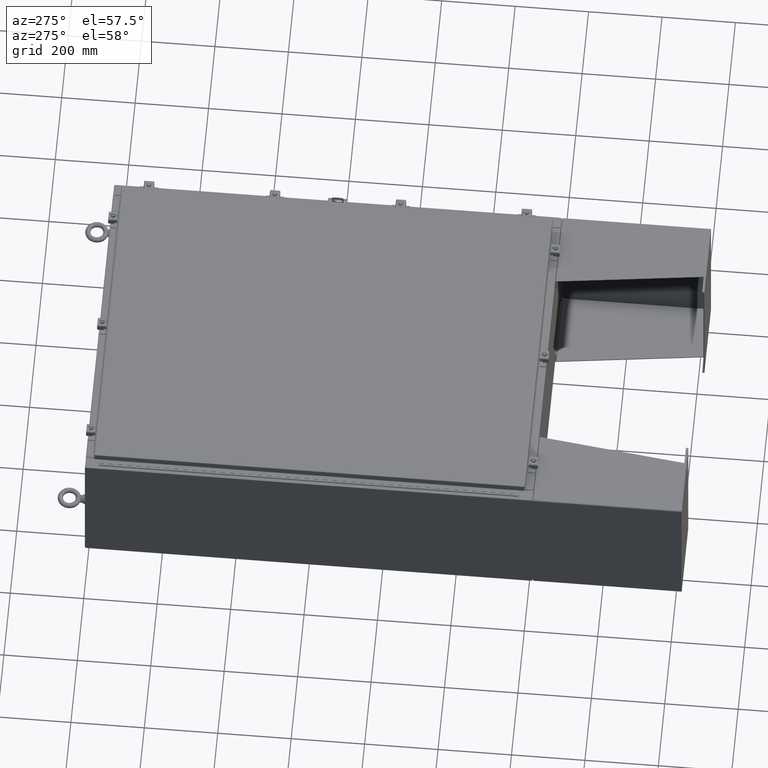
[diagram: clean part render]
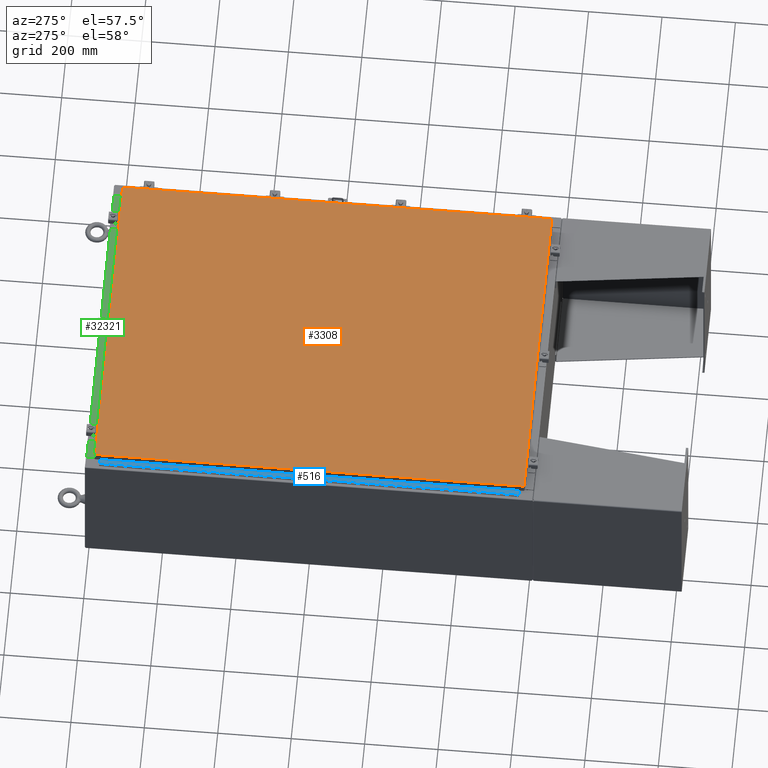
[diagram: same view with three faces highlighted in distinct colors, each labeled with its STEP entity id]
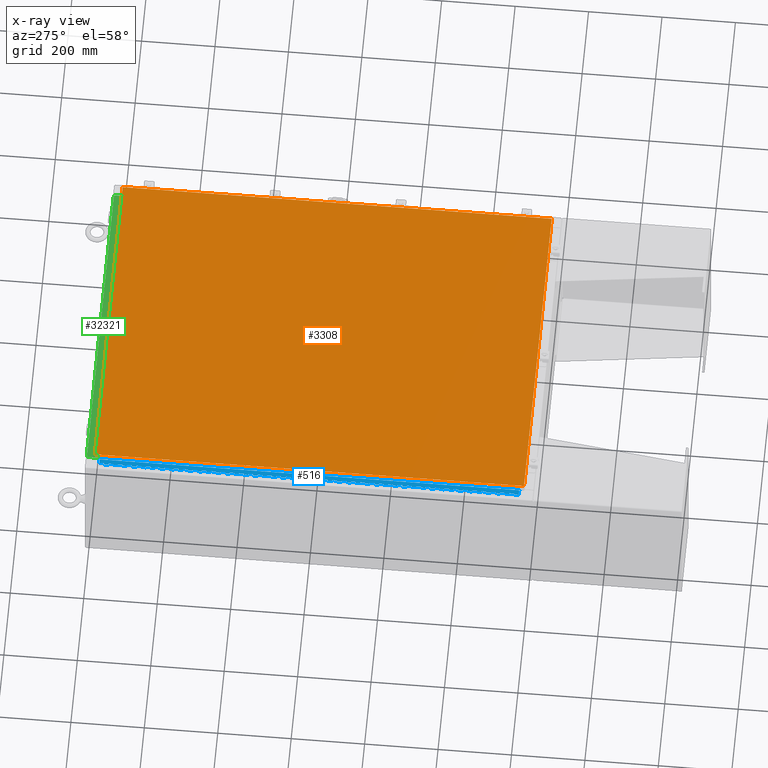
[diagram: x-ray of the same camera — body ghosted, the three highlighted faces saturated]
A machine part, auxiliary view with three faces highlighted in distinct colors.
The next image is the same camera in x-ray (body ghosted, the three faces saturated) — at least one of them is partly hidden behind the body in this view.
Their STEP definitions:

[orange] entity #3308 — the highlighted planar face has unit normal (0, 0, -1).
#2429 = LINE ( 'NONE', #50013, #47774 ) ;
#3308 = ADVANCED_FACE ( 'NONE', ( #42675 ), #57694, .F. ) ;
#4931 = ORIENTED_EDGE ( 'NONE', *, *, #19055, .T. ) ;
#5192 = DIRECTION ( 'NONE',  ( -1.000000000000000000, -0.0000000000000000000, -0.0000000000000000000 ) ) ;
#7889 = LINE ( 'NONE', #46774, #18503 ) ;
#8058 = DIRECTION ( 'NONE',  ( 0.0000000000000000000, 0.0000000000000000000, -1.000000000000000000 ) ) ;
#8775 = EDGE_CURVE ( 'NONE', #55959, #49200, #2429, .T. ) ;
#10066 = ORIENTED_EDGE ( 'NONE', *, *, #8775, .T. ) ;
#12931 = CARTESIAN_POINT ( 'NONE',  ( 16.99029999999999800, -23.00630000000000300, -2.048885995248197400E-016 ) ) ;
#14557 = VECTOR ( 'NONE', #5192, 39.37007874015748100 ) ;
#16005 = LINE ( 'NONE', #54856, #14557 ) ;
#18265 = EDGE_LOOP ( 'NONE', ( #4931, #51015, #42451, #10066 ) ) ;
#18503 = VECTOR ( 'NONE', #53721, 39.37007874015748100 ) ;
#19055 = EDGE_CURVE ( 'NONE', #49200, #29251, #7889, .T. ) ;
#19922 = VECTOR ( 'NONE', #50675, 39.37007874015748100 ) ;
#21159 = CARTESIAN_POINT ( 'NONE',  ( -16.99029999999998400, 23.00630000000001000, -1.297627796990525000E-015 ) ) ;
#22325 = EDGE_CURVE ( 'NONE', #44669, #55959, #16005, .T. ) ;
#22891 = DIRECTION ( 'NONE',  ( 0.0000000000000000000, -1.000000000000000000, 0.0000000000000000000 ) ) ;
#28076 = CARTESIAN_POINT ( 'NONE',  ( 16.99029999999999800, -23.00630000000000300, -2.048885995248197400E-016 ) ) ;
#29251 = VERTEX_POINT ( 'NONE', #12931 ) ;
#34093 = CARTESIAN_POINT ( 'NONE',  ( -16.99029999999999800, -23.00630000000000300, 1.946441695485787500E-015 ) ) ;
#36068 = AXIS2_PLACEMENT_3D ( 'NONE', #44129, #8058, #39754 ) ;
#39754 = DIRECTION ( 'NONE',  ( -1.000000000000000000, 0.0000000000000000000, -0.0000000000000000000 ) ) ;
#40958 = EDGE_CURVE ( 'NONE', #29251, #44669, #45470, .T. ) ;
#42451 = ORIENTED_EDGE ( 'NONE', *, *, #22325, .T. ) ;
#42675 = FACE_OUTER_BOUND ( 'NONE', #18265, .T. ) ;
#44129 = CARTESIAN_POINT ( 'NONE',  ( 0.0000000000000000000, 0.0000000000000000000, 0.0000000000000000000 ) ) ;
#44669 = VERTEX_POINT ( 'NONE', #49050 ) ;
#45470 = LINE ( 'NONE', #28076, #19922 ) ;
#46774 = CARTESIAN_POINT ( 'NONE',  ( -16.99029999999999800, -23.00630000000000300, 1.946441695485787500E-015 ) ) ;
#47774 = VECTOR ( 'NONE', #22891, 39.37007874015748100 ) ;
#49050 = CARTESIAN_POINT ( 'NONE',  ( 16.99029999999999800, 23.00630000000001000, 1.946441695485787500E-015 ) ) ;
#49200 = VERTEX_POINT ( 'NONE', #34093 ) ;
#50013 = CARTESIAN_POINT ( 'NONE',  ( -16.99029999999998400, 23.00630000000001000, -1.297627796990525000E-015 ) ) ;
#50675 = DIRECTION ( 'NONE',  ( 0.0000000000000000000, 1.000000000000000000, 0.0000000000000000000 ) ) ;
#51015 = ORIENTED_EDGE ( 'NONE', *, *, #40958, .T. ) ;
#53721 = DIRECTION ( 'NONE',  ( 1.000000000000000000, -0.0000000000000000000, -0.0000000000000000000 ) ) ;
#54856 = CARTESIAN_POINT ( 'NONE',  ( 16.99029999999999800, 23.00630000000001000, 1.946441695485787500E-015 ) ) ;
#55959 = VERTEX_POINT ( 'NONE', #21159 ) ;
#57694 = PLANE ( 'NONE',  #36068 ) ;

[blue] entity #516 — the highlighted planar face has unit normal (-0, -0, 1).
#7 = CARTESIAN_POINT ( 'NONE',  ( -0.6869999999999978300, 0.6754999999999996600, -45.00000000000000000 ) ) ;
#118 = LINE ( 'NONE', #32978, #46886 ) ;
#230 = EDGE_CURVE ( 'NONE', #9287, #28647, #6018, .T. ) ;
#326 = DIRECTION ( 'NONE',  ( -3.389037039080723100E-015, -1.000000000000000000, 0.0000000000000000000 ) ) ;
#354 = DIRECTION ( 'NONE',  ( 3.389037039080723100E-015, 1.000000000000000000, -0.0000000000000000000 ) ) ;
#360 = LINE ( 'NONE', #12922, #36517 ) ;
#390 = VECTOR ( 'NONE', #10687, 39.37007874015748100 ) ;
#429 = VERTEX_POINT ( 'NONE', #32596 ) ;
#467 = CARTESIAN_POINT ( 'NONE',  ( -0.6869999999999982800, 0.5504999999999997700, -45.00000000000000000 ) ) ;
#475 = LINE ( 'NONE', #42480, #35189 ) ;
#505 = ORIENTED_EDGE ( 'NONE', *, *, #30285, .F. ) ;
#516 = ADVANCED_FACE ( 'NONE', ( #49177 ), #30108, .T. ) ;
#518 = LINE ( 'NONE', #38741, #57812 ) ;
#534 = DIRECTION ( 'NONE',  ( 0.0000000000000000000, -0.0000000000000000000, -1.000000000000000000 ) ) ;
#555 = VECTOR ( 'NONE', #51031, 39.37007874015748100 ) ;
#580 = CARTESIAN_POINT ( 'NONE',  ( -0.6869999999999978300, 0.6754999999999996600, -20.50000000000000400 ) ) ;
#603 = VECTOR ( 'NONE', #56791, 39.37007874015748100 ) ;
#644 = CARTESIAN_POINT ( 'NONE',  ( -0.6869999999999982800, 0.5504999999999997700, -17.50000000000000000 ) ) ;
#675 = ORIENTED_EDGE ( 'NONE', *, *, #21804, .T. ) ;
#714 = LINE ( 'NONE', #16669, #11290 ) ;
#816 = CARTESIAN_POINT ( 'NONE',  ( -0.6869999999999973900, 0.8004999999999995500, -3.500000000000000000 ) ) ;
#857 = VECTOR ( 'NONE', #6966, 39.37007874015748100 ) ;
#1009 = CARTESIAN_POINT ( 'NONE',  ( -0.6869999999999982800, 0.5504999999999997700, -3.500000000000000000 ) ) ;
#1022 = EDGE_CURVE ( 'NONE', #28342, #2439, #11555, .T. ) ;
#1086 = CARTESIAN_POINT ( 'NONE',  ( -0.6869999999999982800, 0.5504999999999997700, -19.00000000000000000 ) ) ;
#1305 = EDGE_CURVE ( 'NONE', #28397, #16045, #48376, .T. ) ;
#1326 = VECTOR ( 'NONE', #8759, 39.37007874015748100 ) ;
#1387 = EDGE_CURVE ( 'NONE', #30189, #25990, #57545, .T. ) ;
#1390 = VECTOR ( 'NONE', #57169, 39.37007874015748100 ) ;
#1420 = CARTESIAN_POINT ( 'NONE',  ( -0.6869999999999998300, 0.07549999999999991400, -45.00000000000000000 ) ) ;
#1440 = LINE ( 'NONE', #20345, #33326 ) ;
#1449 = ORIENTED_EDGE ( 'NONE', *, *, #1305, .F. ) ;
#1478 = VERTEX_POINT ( 'NONE', #49755 ) ;
#1602 = CARTESIAN_POINT ( 'NONE',  ( -0.6869999999999982800, 0.5504999999999997700, -22.00000000000000000 ) ) ;
#1608 = CARTESIAN_POINT ( 'NONE',  ( -0.6869999999999982800, 0.5504999999999997700, -35.00000000000000000 ) ) ;
#1649 = DIRECTION ( 'NONE',  ( 3.389037039080723100E-015, 1.000000000000000000, -0.0000000000000000000 ) ) ;
#1673 = ORIENTED_EDGE ( 'NONE', *, *, #53965, .F. ) ;
#1696 = LINE ( 'NONE', #13943, #49878 ) ;
#1726 = VECTOR ( 'NONE', #2007, 39.37007874015748100 ) ;
#1738 = DIRECTION ( 'NONE',  ( -3.389037039080723100E-015, -1.000000000000000000, 0.0000000000000000000 ) ) ;
#1760 = LINE ( 'NONE', #35416, #24424 ) ;
#1767 = LINE ( 'NONE', #54594, #25836 ) ;
#1802 = LINE ( 'NONE', #42039, #24469 ) ;
#1826 = CARTESIAN_POINT ( 'NONE',  ( -0.6869999999999978300, 0.6754999999999996600, -45.00000000000000000 ) ) ;
#1968 = ORIENTED_EDGE ( 'NONE', *, *, #20329, .F. ) ;
#1999 = VECTOR ( 'NONE', #40242, 39.37007874015748100 ) ;
#2007 = DIRECTION ( 'NONE',  ( 3.389037039080723100E-015, 1.000000000000000000, -0.0000000000000000000 ) ) ;
#2022 = LINE ( 'NONE', #3377, #36759 ) ;
#2063 = DIRECTION ( 'NONE',  ( 0.0000000000000000000, 0.0000000000000000000, 1.000000000000000000 ) ) ;
#2065 = LINE ( 'NONE', #2467, #36792 ) ;
#2273 = VECTOR ( 'NONE', #41476, 39.37007874015748100 ) ;
#2308 = LINE ( 'NONE', #38289, #14303 ) ;
#2439 = VERTEX_POINT ( 'NONE', #45192 ) ;
#2467 = CARTESIAN_POINT ( 'NONE',  ( -0.6870000000000022800, -0.6245000000000003900, 0.0000000000000000000 ) ) ;
#2487 = CARTESIAN_POINT ( 'NONE',  ( -0.6869999999999978300, 0.6754999999999996600, -45.00000000000000000 ) ) ;
#2498 = DIRECTION ( 'NONE',  ( 3.389037039080723100E-015, 1.000000000000000000, -0.0000000000000000000 ) ) ;
#2534 = VECTOR ( 'NONE', #52159, 39.37007874015748100 ) ;
#2589 = VERTEX_POINT ( 'NONE', #53151 ) ;
#2594 = VERTEX_POINT ( 'NONE', #3467 ) ;
#2612 = EDGE_CURVE ( 'NONE', #33298, #50377, #49779, .T. ) ;
#2664 = CARTESIAN_POINT ( 'NONE',  ( -0.6869999999999982800, 0.5504999999999997700, -8.000000000000000000 ) ) ;
#2701 = DIRECTION ( 'NONE',  ( 0.0000000000000000000, 0.0000000000000000000, 1.000000000000000000 ) ) ;
#2807 = EDGE_CURVE ( 'NONE', #20540, #46916, #14277, .T. ) ;
#2838 = CARTESIAN_POINT ( 'NONE',  ( -0.6869999999999978300, 0.6754999999999996600, -35.50000000000000000 ) ) ;
#2878 = CARTESIAN_POINT ( 'NONE',  ( -0.6869999999999978300, 0.6754999999999996600, -29.50000000000000000 ) ) ;
#2882 = CARTESIAN_POINT ( 'NONE',  ( -0.6869999999999978300, 0.6754999999999996600, -20.00000000000000000 ) ) ;
#2897 = CARTESIAN_POINT ( 'NONE',  ( -0.6869999999999982800, 0.5504999999999997700, -14.99999999999999800 ) ) ;
#2920 = VERTEX_POINT ( 'NONE', #28781 ) ;
#2968 = EDGE_CURVE ( 'NONE', #42332, #48093, #17808, .T. ) ;
#3147 = DIRECTION ( 'NONE',  ( -3.389037039080723100E-015, -1.000000000000000000, 0.0000000000000000000 ) ) ;
#3158 = ORIENTED_EDGE ( 'NONE', *, *, #25185, .T. ) ;
#3165 = CARTESIAN_POINT ( 'NONE',  ( -0.6869999999999978300, 0.6754999999999996600, -45.00000000000000000 ) ) ;
#3218 = EDGE_CURVE ( 'NONE', #11853, #49202, #10724, .T. ) ;
#3227 = VECTOR ( 'NONE', #37456, 39.37007874015748100 ) ;
#3236 = VECTOR ( 'NONE', #1738, 39.37007874015748100 ) ;
#3259 = DIRECTION ( 'NONE',  ( -3.389037039080723100E-015, -1.000000000000000000, 0.0000000000000000000 ) ) ;
#3316 = CARTESIAN_POINT ( 'NONE',  ( -0.6869999999999978300, 0.6754999999999996600, -2.999999999999999600 ) ) ;
#3328 = DIRECTION ( 'NONE',  ( 3.369016658928398200E-015, 1.000000000000000000, 0.0000000000000000000 ) ) ;
#3377 = CARTESIAN_POINT ( 'NONE',  ( -0.6869999999999973900, 0.8004999999999995500, -24.99999999999999600 ) ) ;
#3414 = VECTOR ( 'NONE', #51868, 39.37007874015748100 ) ;
#3467 = CARTESIAN_POINT ( 'NONE',  ( -0.6869999999999978300, 0.6754999999999996600, -18.50000000000000000 ) ) ;
#3516 = ORIENTED_EDGE ( 'NONE', *, *, #42914, .F. ) ;
#3649 = CARTESIAN_POINT ( 'NONE',  ( -0.6869999999999978300, 0.6754999999999996600, -2.500000000000000000 ) ) ;
#3763 = EDGE_CURVE ( 'NONE', #38863, #55816, #10063, .T. ) ;
#3889 = EDGE_CURVE ( 'NONE', #57218, #48508, #36323, .T. ) ;
#3926 = ORIENTED_EDGE ( 'NONE', *, *, #37306, .F. ) ;
#4222 = EDGE_CURVE ( 'NONE', #2920, #41594, #31299, .T. ) ;
#4229 = LINE ( 'NONE', #49149, #50969 ) ;
#4261 = CARTESIAN_POINT ( 'NONE',  ( -0.6869999999999982800, 0.5504999999999997700, -12.49999999999999800 ) ) ;
#4282 = CARTESIAN_POINT ( 'NONE',  ( -0.6869999999999982800, 0.5504999999999997700, -21.00000000000000000 ) ) ;
#4334 = CARTESIAN_POINT ( 'NONE',  ( -0.6869999999999978300, 0.6754999999999996600, -24.99999999999999600 ) ) ;
#4381 = DIRECTION ( 'NONE',  ( -3.389037039080723100E-015, -1.000000000000000000, 0.0000000000000000000 ) ) ;
#4391 = VECTOR ( 'NONE', #1649, 39.37007874015748100 ) ;
#4431 = DIRECTION ( 'NONE',  ( 3.389037039080723100E-015, 1.000000000000000000, -0.0000000000000000000 ) ) ;
#4449 = DIRECTION ( 'NONE',  ( 3.389037039080723100E-015, 1.000000000000000000, -0.0000000000000000000 ) ) ;
#4586 = CARTESIAN_POINT ( 'NONE',  ( -0.6869999999999978300, 0.6754999999999996600, -15.50000000000000000 ) ) ;
#4685 = VERTEX_POINT ( 'NONE', #31078 ) ;
#4724 = CARTESIAN_POINT ( 'NONE',  ( -0.6869999999999973900, 0.8004999999999995500, -19.00000000000000000 ) ) ;
#4731 = CARTESIAN_POINT ( 'NONE',  ( -0.6869999999999978300, 0.6754999999999996600, -43.50000000000000000 ) ) ;
#4739 = CARTESIAN_POINT ( 'NONE',  ( -0.6869999999999982800, 0.5504999999999997700, -11.00000000000000000 ) ) ;
#4756 = VERTEX_POINT ( 'NONE', #43781 ) ;
#4805 = LINE ( 'NONE', #29701, #50136 ) ;
#4806 = DIRECTION ( 'NONE',  ( 3.389037039080723100E-015, 1.000000000000000000, -0.0000000000000000000 ) ) ;
#4849 = VERTEX_POINT ( 'NONE', #1602 ) ;
#4903 = VERTEX_POINT ( 'NONE', #22160 ) ;
#4935 = ORIENTED_EDGE ( 'NONE', *, *, #9990, .F. ) ;
#4949 = ORIENTED_EDGE ( 'NONE', *, *, #48651, .F. ) ;
#4950 = VERTEX_POINT ( 'NONE', #53640 ) ;
#4964 = DIRECTION ( 'NONE',  ( 0.0000000000000000000, -0.0000000000000000000, -1.000000000000000000 ) ) ;
#4992 = EDGE_CURVE ( 'NONE', #45748, #45581, #53135, .T. ) ;
#5047 = ORIENTED_EDGE ( 'NONE', *, *, #54297, .T. ) ;
#5048 = ORIENTED_EDGE ( 'NONE', *, *, #15057, .F. ) ;
#5107 = VERTEX_POINT ( 'NONE', #34360 ) ;
#5124 = DIRECTION ( 'NONE',  ( 0.0000000000000000000, 0.0000000000000000000, 1.000000000000000000 ) ) ;
#5129 = CARTESIAN_POINT ( 'NONE',  ( -0.6869999999999978300, 0.6754999999999996600, -27.50000000000000000 ) ) ;
#5136 = VECTOR ( 'NONE', #46910, 39.37007874015748100 ) ;
#5198 = CARTESIAN_POINT ( 'NONE',  ( -0.6869999999999973900, 0.8004999999999995500, -37.50000000000000000 ) ) ;
#5284 = CARTESIAN_POINT ( 'NONE',  ( -0.6869999999999978300, 0.6754999999999996600, -17.99999999999999600 ) ) ;
#5519 = EDGE_CURVE ( 'NONE', #51688, #19163, #41082, .T. ) ;
#5523 = DIRECTION ( 'NONE',  ( 0.0000000000000000000, 0.0000000000000000000, 1.000000000000000000 ) ) ;
#5528 = LINE ( 'NONE', #56530, #43115 ) ;
#5578 = VERTEX_POINT ( 'NONE', #51757 ) ;
#5731 = ORIENTED_EDGE ( 'NONE', *, *, #20461, .T. ) ;
#5735 = EDGE_CURVE ( 'NONE', #29859, #25784, #44600, .T. ) ;
#5768 = ORIENTED_EDGE ( 'NONE', *, *, #32550, .F. ) ;
#5776 = EDGE_CURVE ( 'NONE', #56275, #22765, #17622, .T. ) ;
#5879 = DIRECTION ( 'NONE',  ( 0.0000000000000000000, 0.0000000000000000000, 1.000000000000000000 ) ) ;
#5956 = DIRECTION ( 'NONE',  ( 3.389037039080723100E-015, 1.000000000000000000, -0.0000000000000000000 ) ) ;
#6004 = CARTESIAN_POINT ( 'NONE',  ( -0.6869999999999982800, 0.5504999999999997700, -9.000000000000000000 ) ) ;
#6008 = ORIENTED_EDGE ( 'NONE', *, *, #36740, .F. ) ;
#6018 = LINE ( 'NONE', #31046, #54157 ) ;
#6041 = VERTEX_POINT ( 'NONE', #13210 ) ;
#6073 = ORIENTED_EDGE ( 'NONE', *, *, #48568, .F. ) ;
#6114 = EDGE_CURVE ( 'NONE', #28659, #27794, #2022, .T. ) ;
#6140 = CARTESIAN_POINT ( 'NONE',  ( -0.6869999999999978300, 0.6754999999999996600, -45.00000000000000000 ) ) ;
#6177 = CARTESIAN_POINT ( 'NONE',  ( -0.6869999999999973900, 0.8004999999999995500, -38.00000000000000000 ) ) ;
#6183 = EDGE_CURVE ( 'NONE', #58085, #25670, #44543, .T. ) ;
#6224 = DIRECTION ( 'NONE',  ( -3.389037039080723100E-015, -1.000000000000000000, 0.0000000000000000000 ) ) ;
#6342 = VECTOR ( 'NONE', #40736, 39.37007874015748100 ) ;
#6370 = LINE ( 'NONE', #50183, #41111 ) ;
#6416 = DIRECTION ( 'NONE',  ( 3.389037039080723100E-015, 1.000000000000000000, -0.0000000000000000000 ) ) ;
#6418 = ORIENTED_EDGE ( 'NONE', *, *, #17749, .F. ) ;
#6428 = LINE ( 'NONE', #7061, #45426 ) ;
#6439 = LINE ( 'NONE', #51344, #29121 ) ;
#6447 = ORIENTED_EDGE ( 'NONE', *, *, #11467, .F. ) ;
#6452 = ORIENTED_EDGE ( 'NONE', *, *, #41053, .F. ) ;
#6482 = LINE ( 'NONE', #13574, #29171 ) ;
#6490 = CARTESIAN_POINT ( 'NONE',  ( -0.6869999999999978300, 0.6754999999999996600, -44.00000000000000700 ) ) ;
#6517 = CARTESIAN_POINT ( 'NONE',  ( -0.6869999999999973900, 0.8004999999999995500, -22.00000000000000000 ) ) ;
#6523 = LINE ( 'NONE', #21843, #7934 ) ;
#6541 = CARTESIAN_POINT ( 'NONE',  ( -0.6869999999999982800, 0.5504999999999997700, -39.00000000000000000 ) ) ;
#6549 = DIRECTION ( 'NONE',  ( -3.389037039080723100E-015, -1.000000000000000000, 0.0000000000000000000 ) ) ;
#6604 = VECTOR ( 'NONE', #25183, 39.37007874015748100 ) ;
#6608 = DIRECTION ( 'NONE',  ( 0.0000000000000000000, 0.0000000000000000000, 1.000000000000000000 ) ) ;
#6615 = VERTEX_POINT ( 'NONE', #23924 ) ;
#6641 = ORIENTED_EDGE ( 'NONE', *, *, #54972, .F. ) ;
#6654 = EDGE_CURVE ( 'NONE', #37038, #25990, #33860, .T. ) ;
#6895 = VECTOR ( 'NONE', #5124, 39.37007874015748100 ) ;
#6909 = ORIENTED_EDGE ( 'NONE', *, *, #42831, .F. ) ;
#6966 = DIRECTION ( 'NONE',  ( 0.0000000000000000000, 0.0000000000000000000, 1.000000000000000000 ) ) ;
#6975 = VERTEX_POINT ( 'NONE', #13998 ) ;
#7061 = CARTESIAN_POINT ( 'NONE',  ( -0.6869999999999982800, 0.5504999999999997700, -33.50000000000000000 ) ) ;
#7069 = VECTOR ( 'NONE', #54664, 39.37007874015748100 ) ;
#7075 = VERTEX_POINT ( 'NONE', #13216 ) ;
#7108 = EDGE_CURVE ( 'NONE', #8432, #24462, #48649, .T. ) ;
#7153 = LINE ( 'NONE', #36273, #19170 ) ;
#7162 = VECTOR ( 'NONE', #7289, 39.37007874015748100 ) ;
#7164 = CARTESIAN_POINT ( 'NONE',  ( -0.6869999999999973900, 0.8004999999999995500, -23.99999999999999600 ) ) ;
#7189 = CARTESIAN_POINT ( 'NONE',  ( -0.6869999999999973900, 0.8004999999999995500, -32.00000000000000000 ) ) ;
#7222 = DIRECTION ( 'NONE',  ( 0.0000000000000000000, 0.0000000000000000000, 1.000000000000000000 ) ) ;
#7289 = DIRECTION ( 'NONE',  ( 0.0000000000000000000, 0.0000000000000000000, 1.000000000000000000 ) ) ;
#7291 = ORIENTED_EDGE ( 'NONE', *, *, #47203, .T. ) ;
#7428 = EDGE_CURVE ( 'NONE', #47094, #6615, #18137, .T. ) ;
#7501 = CARTESIAN_POINT ( 'NONE',  ( -0.6869999999999978300, 0.6754999999999996600, -33.50000000000000000 ) ) ;
#7560 = EDGE_CURVE ( 'NONE', #14297, #13283, #45797, .T. ) ;
#7594 = CARTESIAN_POINT ( 'NONE',  ( -0.6869999999999978300, 0.6754999999999996600, -17.50000000000000000 ) ) ;
#7663 = CARTESIAN_POINT ( 'NONE',  ( -0.6869999999999973900, 0.8004999999999995500, -22.50000000000000000 ) ) ;
#7720 = EDGE_CURVE ( 'NONE', #52136, #39535, #14538, .T. ) ;
#7768 = CARTESIAN_POINT ( 'NONE',  ( -0.6869999999999978300, 0.6754999999999996600, -25.50000000000000400 ) ) ;
#7777 = LINE ( 'NONE', #10516, #42523 ) ;
#7787 = DIRECTION ( 'NONE',  ( 3.389037039080723100E-015, 1.000000000000000000, -0.0000000000000000000 ) ) ;
#7800 = LINE ( 'NONE', #12691, #43977 ) ;
#7812 = VECTOR ( 'NONE', #42959, 39.37007874015748100 ) ;
#7860 = VERTEX_POINT ( 'NONE', #55253 ) ;
#7879 = CARTESIAN_POINT ( 'NONE',  ( -0.6869999999999982800, 0.5504999999999997700, -41.49999999999999300 ) ) ;
#7934 = VECTOR ( 'NONE', #8191, 39.37007874015748100 ) ;
#8078 = VERTEX_POINT ( 'NONE', #55052 ) ;
#8088 = CARTESIAN_POINT ( 'NONE',  ( -0.6869999999999973900, 0.8004999999999995500, -37.00000000000000000 ) ) ;
#8121 = VECTOR ( 'NONE', #19130, 39.37007874015748100 ) ;
#8191 = DIRECTION ( 'NONE',  ( 3.389037039080723100E-015, 1.000000000000000000, -0.0000000000000000000 ) ) ;
#8240 = VERTEX_POINT ( 'NONE', #31402 ) ;
#8261 = DIRECTION ( 'NONE',  ( 0.0000000000000000000, -0.0000000000000000000, -1.000000000000000000 ) ) ;
#8366 = ORIENTED_EDGE ( 'NONE', *, *, #49991, .F. ) ;
#8400 = EDGE_CURVE ( 'NONE', #14404, #57878, #40747, .T. ) ;
#8432 = VERTEX_POINT ( 'NONE', #51671 ) ;
#8526 = CARTESIAN_POINT ( 'NONE',  ( -0.6869999999999982800, 0.5504999999999997700, -20.50000000000000400 ) ) ;
#8646 = VECTOR ( 'NONE', #32785, 39.37007874015748100 ) ;
#8731 = LINE ( 'NONE', #7663, #42065 ) ;
#8759 = DIRECTION ( 'NONE',  ( -3.389037039080723100E-015, -1.000000000000000000, 0.0000000000000000000 ) ) ;
#8786 = VECTOR ( 'NONE', #4431, 39.37007874015748100 ) ;
#8893 = EDGE_CURVE ( 'NONE', #47094, #4756, #52701, .T. ) ;
#8925 = VERTEX_POINT ( 'NONE', #42285 ) ;
#8941 = EDGE_CURVE ( 'NONE', #36270, #53261, #15130, .T. ) ;
#8979 = ORIENTED_EDGE ( 'NONE', *, *, #57646, .T. ) ;
#8982 = VECTOR ( 'NONE', #37367, 39.37007874015748100 ) ;
#9047 = LINE ( 'NONE', #45609, #31757 ) ;
#9049 = VERTEX_POINT ( 'NONE', #38690 ) ;
#9204 = LINE ( 'NONE', #38507, #18397 ) ;
#9264 = CARTESIAN_POINT ( 'NONE',  ( -0.6869999999999982800, 0.5504999999999997700, -10.50000000000000000 ) ) ;
#9287 = VERTEX_POINT ( 'NONE', #45010 ) ;
#9332 = VECTOR ( 'NONE', #53673, 39.37007874015748100 ) ;
#9333 = CARTESIAN_POINT ( 'NONE',  ( -0.6869999999999973900, 0.8004999999999995500, -11.00000000000000000 ) ) ;
#9349 = ORIENTED_EDGE ( 'NONE', *, *, #27229, .F. ) ;
#9364 = LINE ( 'NONE', #1826, #19984 ) ;
#9428 = CARTESIAN_POINT ( 'NONE',  ( -0.6869999999999982800, 0.5504999999999997700, -37.50000000000000000 ) ) ;
#9434 = CARTESIAN_POINT ( 'NONE',  ( -0.6869999999999978300, 0.6754999999999996600, -22.00000000000000000 ) ) ;
#9455 = EDGE_CURVE ( 'NONE', #46492, #47264, #34957, .T. ) ;
#9459 = CARTESIAN_POINT ( 'NONE',  ( -0.6869999999999973900, 0.8004999999999995500, -6.499999999999999100 ) ) ;
#9469 = ORIENTED_EDGE ( 'NONE', *, *, #8941, .F. ) ;
#9481 = VECTOR ( 'NONE', #31452, 39.37007874015748100 ) ;
#9514 = EDGE_CURVE ( 'NONE', #44772, #1478, #54735, .T. ) ;
#9523 = VECTOR ( 'NONE', #46112, 39.37007874015748100 ) ;
#9525 = EDGE_CURVE ( 'NONE', #28895, #56928, #29259, .T. ) ;
#9720 = DIRECTION ( 'NONE',  ( -3.389037039080723100E-015, -1.000000000000000000, 0.0000000000000000000 ) ) ;
#9839 = CARTESIAN_POINT ( 'NONE',  ( -0.6869999999999978300, 0.6754999999999996600, -10.00000000000000000 ) ) ;
#9847 = ORIENTED_EDGE ( 'NONE', *, *, #16533, .T. ) ;
#9869 = CARTESIAN_POINT ( 'NONE',  ( -0.6869999999999978300, 0.6754999999999996600, -42.00000000000000000 ) ) ;
#9896 = VERTEX_POINT ( 'NONE', #54184 ) ;
#9899 = VERTEX_POINT ( 'NONE', #57086 ) ;
#9945 = DIRECTION ( 'NONE',  ( 0.0000000000000000000, -0.0000000000000000000, -1.000000000000000000 ) ) ;
#9990 = EDGE_CURVE ( 'NONE', #47970, #25784, #48620, .T. ) ;
#10063 = LINE ( 'NONE', #10824, #8646 ) ;
#10136 = LINE ( 'NONE', #12556, #55470 ) ;
#10141 = ORIENTED_EDGE ( 'NONE', *, *, #54022, .F. ) ;
#10295 = DIRECTION ( 'NONE',  ( 0.0000000000000000000, -0.0000000000000000000, -1.000000000000000000 ) ) ;
#10305 = VECTOR ( 'NONE', #3147, 39.37007874015748100 ) ;
#10330 = CARTESIAN_POINT ( 'NONE',  ( -0.6869999999999978300, 0.6754999999999996600, -5.500000000000000000 ) ) ;
#10353 = CARTESIAN_POINT ( 'NONE',  ( -0.6869999999999973900, 0.8004999999999995500, -27.00000000000000000 ) ) ;
#10355 = VERTEX_POINT ( 'NONE', #5284 ) ;
#10412 = DIRECTION ( 'NONE',  ( -3.389037039080723100E-015, -1.000000000000000000, 0.0000000000000000000 ) ) ;
#10433 = LINE ( 'NONE', #26032, #55768 ) ;
#10466 = ORIENTED_EDGE ( 'NONE', *, *, #20151, .F. ) ;
#10516 = CARTESIAN_POINT ( 'NONE',  ( -0.6869999999999973900, 0.8004999999999995500, -40.00000000000000000 ) ) ;
#10557 = CARTESIAN_POINT ( 'NONE',  ( -0.6869999999999978300, 0.6754999999999996600, -45.00000000000000000 ) ) ;
#10558 = VERTEX_POINT ( 'NONE', #51571 ) ;
#10581 = ORIENTED_EDGE ( 'NONE', *, *, #27879, .F. ) ;
#10601 = CARTESIAN_POINT ( 'NONE',  ( -0.6869999999999978300, 0.6754999999999996600, -11.99999999999999800 ) ) ;
#10652 = DIRECTION ( 'NONE',  ( 0.0000000000000000000, 0.0000000000000000000, 1.000000000000000000 ) ) ;
#10658 = EDGE_CURVE ( 'NONE', #10558, #51011, #30868, .T. ) ;
#10687 = DIRECTION ( 'NONE',  ( -3.389037039080723100E-015, -1.000000000000000000, 0.0000000000000000000 ) ) ;
#10693 = ORIENTED_EDGE ( 'NONE', *, *, #26231, .T. ) ;
#10724 = LINE ( 'NONE', #52615, #9332 ) ;
#10792 = VECTOR ( 'NONE', #37896, 39.37007874015748100 ) ;
#10806 = VECTOR ( 'NONE', #7787, 39.37007874015748100 ) ;
#10824 = CARTESIAN_POINT ( 'NONE',  ( -0.6869999999999982800, 0.5504999999999997700, -38.50000000000000000 ) ) ;
#10858 = EDGE_CURVE ( 'NONE', #22765, #56125, #45031, .T. ) ;
#10920 = EDGE_CURVE ( 'NONE', #55177, #25299, #34405, .T. ) ;
#10931 = ORIENTED_EDGE ( 'NONE', *, *, #47515, .F. ) ;
#10938 = VECTOR ( 'NONE', #35940, 39.37007874015748100 ) ;
#11024 = EDGE_CURVE ( 'NONE', #9287, #16045, #37906, .T. ) ;
#11052 = ORIENTED_EDGE ( 'NONE', *, *, #7428, .T. ) ;
#11083 = VECTOR ( 'NONE', #39493, 39.37007874015748100 ) ;
#11099 = EDGE_CURVE ( 'NONE', #32770, #5578, #56277, .T. ) ;
#11133 = VERTEX_POINT ( 'NONE', #23688 ) ;
#11173 = CARTESIAN_POINT ( 'NONE',  ( -0.6869999999999973900, 0.8004999999999995500, -43.00000000000000700 ) ) ;
#11232 = CARTESIAN_POINT ( 'NONE',  ( -0.6869999999999973900, 0.8004999999999995500, -2.500000000000000000 ) ) ;
#11290 = VECTOR ( 'NONE', #39275, 39.37007874015748100 ) ;
#11357 = EDGE_CURVE ( 'NONE', #6041, #38053, #19411, .T. ) ;
#11377 = ORIENTED_EDGE ( 'NONE', *, *, #5735, .T. ) ;
#11394 = DIRECTION ( 'NONE',  ( 0.0000000000000000000, -0.0000000000000000000, -1.000000000000000000 ) ) ;
#11434 = EDGE_CURVE ( 'NONE', #31025, #10355, #16565, .T. ) ;
#11467 = EDGE_CURVE ( 'NONE', #27269, #13570, #36456, .T. ) ;
#11471 = CARTESIAN_POINT ( 'NONE',  ( -0.6869999999999982800, 0.5504999999999997700, -28.50000000000000000 ) ) ;
#11529 = EDGE_CURVE ( 'NONE', #25861, #20540, #45655, .T. ) ;
#11555 = LINE ( 'NONE', #47471, #46309 ) ;
#11648 = CARTESIAN_POINT ( 'NONE',  ( -0.6869999999999978300, 0.6754999999999996600, -9.500000000000000000 ) ) ;
#11771 = VERTEX_POINT ( 'NONE', #54228 ) ;
#11853 = VERTEX_POINT ( 'NONE', #42853 ) ;
#11974 = VECTOR ( 'NONE', #50804, 39.37007874015748100 ) ;
#12017 = EDGE_CURVE ( 'NONE', #52757, #53261, #33549, .T. ) ;
#12067 = DIRECTION ( 'NONE',  ( -3.389037039080723100E-015, -1.000000000000000000, 0.0000000000000000000 ) ) ;
#12069 = VECTOR ( 'NONE', #46674, 39.37007874015748100 ) ;
#12108 = VERTEX_POINT ( 'NONE', #6004 ) ;
#12130 = CARTESIAN_POINT ( 'NONE',  ( -0.6869999999999978300, 0.6754999999999996600, -45.00000000000000000 ) ) ;
#12224 = VERTEX_POINT ( 'NONE', #9434 ) ;
#12367 = ORIENTED_EDGE ( 'NONE', *, *, #54175, .F. ) ;
#12490 = ORIENTED_EDGE ( 'NONE', *, *, #3763, .F. ) ;
#12514 = DIRECTION ( 'NONE',  ( 0.0000000000000000000, -0.0000000000000000000, -1.000000000000000000 ) ) ;
#12529 = CARTESIAN_POINT ( 'NONE',  ( -0.6869999999999982800, 0.5504999999999997700, -42.50000000000000000 ) ) ;
#12549 = EDGE_CURVE ( 'NONE', #8240, #18822, #53280, .T. ) ;
#12556 = CARTESIAN_POINT ( 'NONE',  ( -0.6869999999999982800, 0.5504999999999997700, -16.50000000000000000 ) ) ;
#12569 = EDGE_CURVE ( 'NONE', #29859, #27659, #39847, .T. ) ;
#12612 = DIRECTION ( 'NONE',  ( 3.389037039080723100E-015, 1.000000000000000000, -0.0000000000000000000 ) ) ;
#12691 = CARTESIAN_POINT ( 'NONE',  ( -0.6869999999999978300, 0.6754999999999996600, -45.00000000000000000 ) ) ;
#12697 = LINE ( 'NONE', #31352, #35419 ) ;
#12790 = LINE ( 'NONE', #34249, #34118 ) ;
#12836 = DIRECTION ( 'NONE',  ( -3.389037039080723100E-015, -1.000000000000000000, 0.0000000000000000000 ) ) ;
#12886 = DIRECTION ( 'NONE',  ( 3.389037039080723100E-015, 1.000000000000000000, -0.0000000000000000000 ) ) ;
#12890 = ORIENTED_EDGE ( 'NONE', *, *, #20904, .F. ) ;
#12922 = CARTESIAN_POINT ( 'NONE',  ( -0.6869999999999982800, 0.5504999999999997700, -36.50000000000000000 ) ) ;
#12970 = VECTOR ( 'NONE', #40463, 39.37007874015748100 ) ;
#12977 = EDGE_CURVE ( 'NONE', #38761, #57610, #55438, .T. ) ;
#13056 = VERTEX_POINT ( 'NONE', #28835 ) ;
#13108 = VECTOR ( 'NONE', #12612, 39.37007874015748100 ) ;
#13140 = CARTESIAN_POINT ( 'NONE',  ( -0.6869999999999978300, 0.6754999999999996600, -24.50000000000000000 ) ) ;
#13210 = CARTESIAN_POINT ( 'NONE',  ( -0.6869999999999982800, 0.5504999999999997700, -4.000000000000000000 ) ) ;
#13216 = CARTESIAN_POINT ( 'NONE',  ( -0.6869999999999978300, 0.6754999999999996600, -12.49999999999999800 ) ) ;
#13270 = LINE ( 'NONE', #33066, #49437 ) ;
#13277 = CARTESIAN_POINT ( 'NONE',  ( -0.6869999999999978300, 0.6754999999999996600, -21.50000000000000400 ) ) ;
#13283 = VERTEX_POINT ( 'NONE', #50243 ) ;
#13328 = ORIENTED_EDGE ( 'NONE', *, *, #23270, .T. ) ;
#13329 = LINE ( 'NONE', #26776, #1326 ) ;
#13388 = LINE ( 'NONE', #28527, #1390 ) ;
#13406 = ORIENTED_EDGE ( 'NONE', *, *, #21310, .F. ) ;
#13460 = ORIENTED_EDGE ( 'NONE', *, *, #39691, .F. ) ;
#13464 = ORIENTED_EDGE ( 'NONE', *, *, #2968, .T. ) ;
#13472 = VECTOR ( 'NONE', #46728, 39.37007874015748100 ) ;
#13485 = LINE ( 'NONE', #28721, #48233 ) ;
#13537 = VECTOR ( 'NONE', #21530, 39.37007874015748100 ) ;
#13570 = VERTEX_POINT ( 'NONE', #24133 ) ;
#13574 = CARTESIAN_POINT ( 'NONE',  ( -0.6869999999999973900, 0.8004999999999995500, -10.00000000000000000 ) ) ;
#13601 = EDGE_CURVE ( 'NONE', #50377, #38643, #27053, .T. ) ;
#13620 = DIRECTION ( 'NONE',  ( 0.0000000000000000000, 0.0000000000000000000, 1.000000000000000000 ) ) ;
#13649 = LINE ( 'NONE', #35271, #48386 ) ;
#13679 = CARTESIAN_POINT ( 'NONE',  ( -0.6869999999999982800, 0.5504999999999997700, -24.50000000000000000 ) ) ;
#13794 = LINE ( 'NONE', #6177, #15230 ) ;
#13870 = VECTOR ( 'NONE', #2063, 39.37007874015748100 ) ;
#13943 = CARTESIAN_POINT ( 'NONE',  ( -0.6869999999999973900, 0.8004999999999995500, -8.000000000000000000 ) ) ;
#13984 = CARTESIAN_POINT ( 'NONE',  ( -0.6869999999999982800, 0.5504999999999997700, -0.5000000000000000000 ) ) ;
#13998 = CARTESIAN_POINT ( 'NONE',  ( -0.6869999999999982800, 0.5504999999999997700, -27.50000000000000000 ) ) ;
#14057 = LINE ( 'NONE', #4724, #23315 ) ;
#14124 = CARTESIAN_POINT ( 'NONE',  ( -0.6869999999999982800, 0.5504999999999997700, -16.50000000000000000 ) ) ;
#14159 = VERTEX_POINT ( 'NONE', #1009 ) ;
#14178 = CARTESIAN_POINT ( 'NONE',  ( -0.6869999999999978300, 0.6754999999999996600, -45.00000000000000000 ) ) ;
#14215 = LINE ( 'NONE', #35467, #36942 ) ;
#14218 = LINE ( 'NONE', #11232, #24887 ) ;
#14243 = EDGE_CURVE ( 'NONE', #18413, #16900, #6439, .T. ) ;
#14277 = LINE ( 'NONE', #14291, #2273 ) ;
#14289 = LINE ( 'NONE', #9333, #24959 ) ;
#14291 = CARTESIAN_POINT ( 'NONE',  ( -0.6869999999999982800, 0.5504999999999997700, -1.499999999999999800 ) ) ;
#14297 = VERTEX_POINT ( 'NONE', #25975 ) ;
#14303 = VECTOR ( 'NONE', #42876, 39.37007874015748100 ) ;
#14404 = VERTEX_POINT ( 'NONE', #580 ) ;
#14538 = LINE ( 'NONE', #47812, #2534 ) ;
#14571 = EDGE_CURVE ( 'NONE', #31735, #21184, #24117, .T. ) ;
#14642 = ORIENTED_EDGE ( 'NONE', *, *, #18546, .T. ) ;
#14663 = EDGE_CURVE ( 'NONE', #31020, #12224, #7800, .T. ) ;
#14672 = VERTEX_POINT ( 'NONE', #1608 ) ;
#14708 = CARTESIAN_POINT ( 'NONE',  ( -0.6869999999999973900, 0.8004999999999995500, -39.49999999999999300 ) ) ;
#14872 = CARTESIAN_POINT ( 'NONE',  ( -0.6869999999999978300, 0.6754999999999996600, -0.5000000000000000000 ) ) ;
#14897 = LINE ( 'NONE', #42205, #13472 ) ;
#14928 = DIRECTION ( 'NONE',  ( -3.389037039080723100E-015, -1.000000000000000000, 0.0000000000000000000 ) ) ;
#14936 = EDGE_CURVE ( 'NONE', #49202, #27269, #43239, .T. ) ;
#14942 = ORIENTED_EDGE ( 'NONE', *, *, #53731, .F. ) ;
#14950 = LINE ( 'NONE', #55851, #4391 ) ;
#15026 = AXIS2_PLACEMENT_3D ( 'NONE', #39218, #16603, #48296 ) ;
#15057 = EDGE_CURVE ( 'NONE', #44048, #39532, #13388, .T. ) ;
#15130 = LINE ( 'NONE', #33357, #37830 ) ;
#15147 = VECTOR ( 'NONE', #4449, 39.37007874015748100 ) ;
#15152 = CARTESIAN_POINT ( 'NONE',  ( -0.6869999999999978300, 0.6754999999999996600, -22.50000000000000000 ) ) ;
#15155 = ORIENTED_EDGE ( 'NONE', *, *, #9455, .T. ) ;
#15168 = VERTEX_POINT ( 'NONE', #57371 ) ;
#15224 = VECTOR ( 'NONE', #41873, 39.37007874015748100 ) ;
#15230 = VECTOR ( 'NONE', #37857, 39.37007874015748100 ) ;
#15237 = VERTEX_POINT ( 'NONE', #1420 ) ;
#15248 = CARTESIAN_POINT ( 'NONE',  ( -0.6869999999999973900, 0.8004999999999995500, -0.5000000000000000000 ) ) ;
#15304 = LINE ( 'NONE', #24630, #13870 ) ;
#15332 = DIRECTION ( 'NONE',  ( 0.0000000000000000000, 0.0000000000000000000, 1.000000000000000000 ) ) ;
#15441 = LINE ( 'NONE', #47329, #3414 ) ;
#15602 = LINE ( 'NONE', #54541, #26218 ) ;
#15634 = DIRECTION ( 'NONE',  ( 3.389037039080723100E-015, 1.000000000000000000, -0.0000000000000000000 ) ) ;
#15658 = VERTEX_POINT ( 'NONE', #10601 ) ;
#15663 = LINE ( 'NONE', #16818, #38349 ) ;
#15696 = EDGE_CURVE ( 'NONE', #47490, #39936, #55844, .T. ) ;
#15715 = VECTOR ( 'NONE', #57014, 39.37007874015748100 ) ;
#15775 = VERTEX_POINT ( 'NONE', #36621 ) ;
#15883 = VECTOR ( 'NONE', #43830, 39.37007874015748100 ) ;
#16022 = VERTEX_POINT ( 'NONE', #16101 ) ;
#16040 = ORIENTED_EDGE ( 'NONE', *, *, #1387, .F. ) ;
#16045 = VERTEX_POINT ( 'NONE', #45922 ) ;
#16101 = CARTESIAN_POINT ( 'NONE',  ( -0.6869999999999982800, 0.5504999999999997700, -23.50000000000000000 ) ) ;
#16131 = EDGE_CURVE ( 'NONE', #28342, #57303, #9047, .T. ) ;
#16229 = VECTOR ( 'NONE', #40096, 39.37007874015748100 ) ;
#16285 = EDGE_CURVE ( 'NONE', #8078, #32888, #36697, .T. ) ;
#16310 = VERTEX_POINT ( 'NONE', #24688 ) ;
#16344 = VECTOR ( 'NONE', #32253, 39.37007874015748100 ) ;
#16391 = EDGE_CURVE ( 'NONE', #56275, #26199, #45886, .T. ) ;
#16412 = VECTOR ( 'NONE', #16682, 39.37007874015748100 ) ;
#16417 = VERTEX_POINT ( 'NONE', #24968 ) ;
#16484 = ORIENTED_EDGE ( 'NONE', *, *, #16391, .T. ) ;
#16533 = EDGE_CURVE ( 'NONE', #50733, #19221, #47968, .T. ) ;
#16565 = LINE ( 'NONE', #20931, #15147 ) ;
#16603 = DIRECTION ( 'NONE',  ( 1.000000000000000000, -3.369016658928398200E-015, 0.0000000000000000000 ) ) ;
#16612 = VECTOR ( 'NONE', #36432, 39.37007874015748100 ) ;
#16669 = CARTESIAN_POINT ( 'NONE',  ( -0.6869999999999973900, 0.8004999999999995500, -34.00000000000000000 ) ) ;
#16670 = LINE ( 'NONE', #28330, #3227 ) ;
#16682 = DIRECTION ( 'NONE',  ( 3.389037039080723100E-015, 1.000000000000000000, -0.0000000000000000000 ) ) ;
#16693 = DIRECTION ( 'NONE',  ( 0.0000000000000000000, 0.0000000000000000000, 1.000000000000000000 ) ) ;
#16726 = ORIENTED_EDGE ( 'NONE', *, *, #42884, .F. ) ;
#16818 = CARTESIAN_POINT ( 'NONE',  ( -0.6869999999999973900, 0.8004999999999995500, -44.49999999999999300 ) ) ;
#16900 = VERTEX_POINT ( 'NONE', #50921 ) ;
#16925 = DIRECTION ( 'NONE',  ( 0.0000000000000000000, 0.0000000000000000000, 1.000000000000000000 ) ) ;
#16969 = CARTESIAN_POINT ( 'NONE',  ( -0.6869999999999982800, 0.5504999999999997700, -34.50000000000000000 ) ) ;
#17045 = EDGE_CURVE ( 'NONE', #23091, #13570, #24431, .T. ) ;
#17086 = CARTESIAN_POINT ( 'NONE',  ( -0.6869999999999982800, 0.5504999999999997700, -32.50000000000000000 ) ) ;
#17154 = ORIENTED_EDGE ( 'NONE', *, *, #48786, .T. ) ;
#17208 = ORIENTED_EDGE ( 'NONE', *, *, #31518, .F. ) ;
#17212 = CARTESIAN_POINT ( 'NONE',  ( -0.6869999999999973900, 0.8004999999999995500, -1.000000000000000000 ) ) ;
#17221 = CARTESIAN_POINT ( 'NONE',  ( -0.6869999999999978300, 0.6754999999999996600, -5.000000000000000000 ) ) ;
#17225 = VERTEX_POINT ( 'NONE', #58145 ) ;
#17233 = EDGE_CURVE ( 'NONE', #36279, #38536, #49189, .T. ) ;
#17235 = LINE ( 'NONE', #6517, #50562 ) ;
#17250 = CARTESIAN_POINT ( 'NONE',  ( -0.6869999999999982800, 0.5504999999999997700, -36.00000000000000000 ) ) ;
#17275 = CARTESIAN_POINT ( 'NONE',  ( -0.6869999999999978300, 0.6754999999999996600, -45.00000000000000000 ) ) ;
#17302 = LINE ( 'NONE', #37965, #3236 ) ;
#17394 = DIRECTION ( 'NONE',  ( 0.0000000000000000000, 0.0000000000000000000, 1.000000000000000000 ) ) ;
#17412 = EDGE_CURVE ( 'NONE', #39936, #15658, #42129, .T. ) ;
#17622 = LINE ( 'NONE', #14708, #28265 ) ;
#17634 = ORIENTED_EDGE ( 'NONE', *, *, #47060, .T. ) ;
#17719 = CARTESIAN_POINT ( 'NONE',  ( -0.6869999999999978300, 0.6754999999999996600, -45.00000000000000000 ) ) ;
#17739 = DIRECTION ( 'NONE',  ( -3.389037039080723100E-015, -1.000000000000000000, 0.0000000000000000000 ) ) ;
#17749 = EDGE_CURVE ( 'NONE', #15168, #36665, #37101, .T. ) ;
#17752 = VECTOR ( 'NONE', #34630, 39.37007874015748100 ) ;
#17808 = LINE ( 'NONE', #33742, #28465 ) ;
#17822 = CARTESIAN_POINT ( 'NONE',  ( -0.6869999999999978300, 0.6754999999999996600, -38.00000000000000000 ) ) ;
#17973 = ORIENTED_EDGE ( 'NONE', *, *, #49568, .F. ) ;
#18078 = LINE ( 'NONE', #41444, #46455 ) ;
#18117 = VERTEX_POINT ( 'NONE', #33696 ) ;
#18137 = LINE ( 'NONE', #53836, #27365 ) ;
#18140 = ORIENTED_EDGE ( 'NONE', *, *, #21074, .F. ) ;
#18141 = DIRECTION ( 'NONE',  ( 3.389037039080723100E-015, 1.000000000000000000, -0.0000000000000000000 ) ) ;
#18150 = VECTOR ( 'NONE', #46626, 39.37007874015748100 ) ;
#18173 = LINE ( 'NONE', #46862, #33077 ) ;
#18200 = ORIENTED_EDGE ( 'NONE', *, *, #6183, .F. ) ;
#18271 = LINE ( 'NONE', #49441, #52987 ) ;
#18397 = VECTOR ( 'NONE', #47610, 39.37007874015748100 ) ;
#18413 = VERTEX_POINT ( 'NONE', #56309 ) ;
#18415 = DIRECTION ( 'NONE',  ( 0.0000000000000000000, 0.0000000000000000000, 1.000000000000000000 ) ) ;
#18459 = CARTESIAN_POINT ( 'NONE',  ( -0.6869999999999978300, 0.6754999999999996600, -40.50000000000000000 ) ) ;
#18470 = ORIENTED_EDGE ( 'NONE', *, *, #58001, .F. ) ;
#18546 = EDGE_CURVE ( 'NONE', #53610, #27794, #9364, .T. ) ;
#18597 = VECTOR ( 'NONE', #27215, 39.37007874015748100 ) ;
#18603 = ORIENTED_EDGE ( 'NONE', *, *, #58059, .F. ) ;
#18605 = CARTESIAN_POINT ( 'NONE',  ( -0.6869999999999978300, 0.6754999999999996600, -8.000000000000000000 ) ) ;
#18636 = VERTEX_POINT ( 'NONE', #55069 ) ;
#18641 = CARTESIAN_POINT ( 'NONE',  ( -0.6869999999999982800, 0.5504999999999997700, -19.50000000000000000 ) ) ;
#18680 = CARTESIAN_POINT ( 'NONE',  ( -0.6869999999999982800, 0.5504999999999997700, -42.50000000000000000 ) ) ;
#18752 = CARTESIAN_POINT ( 'NONE',  ( -0.6869999999999973900, 0.8004999999999995500, -43.50000000000000000 ) ) ;
#18761 = LINE ( 'NONE', #29763, #30833 ) ;
#18822 = VERTEX_POINT ( 'NONE', #48532 ) ;
#18825 = CARTESIAN_POINT ( 'NONE',  ( -0.6869999999999982800, 0.5504999999999997700, -11.50000000000000000 ) ) ;
#18843 = LINE ( 'NONE', #7189, #41559 ) ;
#18849 = VERTEX_POINT ( 'NONE', #22237 ) ;
#18855 = ORIENTED_EDGE ( 'NONE', *, *, #14936, .F. ) ;
#18877 = ORIENTED_EDGE ( 'NONE', *, *, #13601, .F. ) ;
#18890 = ORIENTED_EDGE ( 'NONE', *, *, #12549, .F. ) ;
#18987 = DIRECTION ( 'NONE',  ( 3.389037039080723100E-015, 1.000000000000000000, -0.0000000000000000000 ) ) ;
#19085 = CARTESIAN_POINT ( 'NONE',  ( -0.6869999999999973900, 0.8004999999999995500, -26.00000000000000000 ) ) ;
#19130 = DIRECTION ( 'NONE',  ( 3.389037039080723100E-015, 1.000000000000000000, -0.0000000000000000000 ) ) ;
#19163 = VERTEX_POINT ( 'NONE', #38475 ) ;
#19170 = VECTOR ( 'NONE', #13620, 39.37007874015748100 ) ;
#19175 = LINE ( 'NONE', #26460, #7162 ) ;
#19187 = LINE ( 'NONE', #18752, #16344 ) ;
#19221 = VERTEX_POINT ( 'NONE', #38597 ) ;
#19227 = LINE ( 'NONE', #17212, #31316 ) ;
#19248 = CARTESIAN_POINT ( 'NONE',  ( -0.6869999999999973900, 0.8004999999999995500, -25.50000000000000400 ) ) ;
#19329 = EDGE_CURVE ( 'NONE', #14404, #54741, #19175, .T. ) ;
#19411 = LINE ( 'NONE', #22844, #43560 ) ;
#19470 = VECTOR ( 'NONE', #43876, 39.37007874015748100 ) ;
#19491 = VECTOR ( 'NONE', #36027, 39.37007874015748100 ) ;
#19501 = CARTESIAN_POINT ( 'NONE',  ( -0.6869999999999982800, 0.5504999999999997700, -11.99999999999999800 ) ) ;
#19519 = CARTESIAN_POINT ( 'NONE',  ( -0.6869999999999982800, 0.5504999999999997700, -36.50000000000000000 ) ) ;
#19545 = CARTESIAN_POINT ( 'NONE',  ( -0.6869999999999973900, 0.8004999999999995500, -41.49999999999999300 ) ) ;
#19716 = DIRECTION ( 'NONE',  ( 3.389037039080723100E-015, 1.000000000000000000, -0.0000000000000000000 ) ) ;
#19720 = VERTEX_POINT ( 'NONE', #28756 ) ;
#19724 = VECTOR ( 'NONE', #34690, 39.37007874015748100 ) ;
#19743 = VERTEX_POINT ( 'NONE', #37869 ) ;
#19755 = EDGE_CURVE ( 'NONE', #21041, #14159, #36891, .T. ) ;
#19756 = CARTESIAN_POINT ( 'NONE',  ( -0.6869999999999973900, 0.8004999999999995500, -26.50000000000000400 ) ) ;
#19782 = CARTESIAN_POINT ( 'NONE',  ( -0.6869999999999982800, 0.5504999999999997700, -30.50000000000000400 ) ) ;
#19967 = ORIENTED_EDGE ( 'NONE', *, *, #11099, .F. ) ;
#19974 = VECTOR ( 'NONE', #12514, 39.37007874015748100 ) ;
#19984 = VECTOR ( 'NONE', #38002, 39.37007874015748100 ) ;
#20056 = CARTESIAN_POINT ( 'NONE',  ( -0.6869999999999978300, 0.6754999999999996600, -45.00000000000000000 ) ) ;
#20131 = CARTESIAN_POINT ( 'NONE',  ( -0.6869999999999978300, 0.6754999999999996600, -7.000000000000000000 ) ) ;
#20151 = EDGE_CURVE ( 'NONE', #51176, #31025, #6370, .T. ) ;
#20152 = LINE ( 'NONE', #23723, #9523 ) ;
#20201 = ORIENTED_EDGE ( 'NONE', *, *, #23163, .F. ) ;
#20302 = DIRECTION ( 'NONE',  ( 0.0000000000000000000, 0.0000000000000000000, 1.000000000000000000 ) ) ;
#20329 = EDGE_CURVE ( 'NONE', #25228, #11771, #56628, .T. ) ;
#20334 = CARTESIAN_POINT ( 'NONE',  ( -0.6869999999999973900, 0.8004999999999995500, -2.999999999999999600 ) ) ;
#20339 = VECTOR ( 'NONE', #3328, 39.37007874015748100 ) ;
#20345 = CARTESIAN_POINT ( 'NONE',  ( -0.6869999999999978300, 0.6754999999999996600, -45.00000000000000000 ) ) ;
#20379 = CARTESIAN_POINT ( 'NONE',  ( -0.6869999999999982800, 0.5504999999999997700, -25.50000000000000400 ) ) ;
#20420 = CARTESIAN_POINT ( 'NONE',  ( -0.6869999999999978300, 0.6754999999999996600, -45.00000000000000000 ) ) ;
#20427 = VECTOR ( 'NONE', #21969, 39.37007874015748100 ) ;
#20455 = CARTESIAN_POINT ( 'NONE',  ( -0.6869999999999978300, 0.6754999999999996600, -34.50000000000000000 ) ) ;
#20461 = EDGE_CURVE ( 'NONE', #42364, #38210, #26854, .T. ) ;
#20475 = ORIENTED_EDGE ( 'NONE', *, *, #11357, .F. ) ;
#20508 = VECTOR ( 'NONE', #18987, 39.37007874015748100 ) ;
#20510 = EDGE_CURVE ( 'NONE', #43420, #18849, #48119, .T. ) ;
#20512 = CARTESIAN_POINT ( 'NONE',  ( -0.6869999999999978300, 0.6754999999999996600, -45.00000000000000000 ) ) ;
#20540 = VERTEX_POINT ( 'NONE', #48917 ) ;
#20633 = DIRECTION ( 'NONE',  ( 0.0000000000000000000, -0.0000000000000000000, -1.000000000000000000 ) ) ;
#20773 = ORIENTED_EDGE ( 'NONE', *, *, #32664, .F. ) ;
#20883 = ORIENTED_EDGE ( 'NONE', *, *, #52744, .F. ) ;
#20899 = VECTOR ( 'NONE', #10295, 39.37007874015748100 ) ;
#20904 = EDGE_CURVE ( 'NONE', #53610, #44772, #43160, .T. ) ;
#20931 = CARTESIAN_POINT ( 'NONE',  ( -0.6869999999999973900, 0.8004999999999995500, -17.99999999999999600 ) ) ;
#20964 = VECTOR ( 'NONE', #22661, 39.37007874015748100 ) ;
#20986 = ORIENTED_EDGE ( 'NONE', *, *, #25681, .F. ) ;
#20999 = VERTEX_POINT ( 'NONE', #14872 ) ;
#21041 = VERTEX_POINT ( 'NONE', #33332 ) ;
#21074 = EDGE_CURVE ( 'NONE', #41888, #52136, #33192, .T. ) ;
#21084 = CARTESIAN_POINT ( 'NONE',  ( -0.6869999999999978300, 0.6754999999999996600, -26.00000000000000000 ) ) ;
#21142 = CARTESIAN_POINT ( 'NONE',  ( -0.6869999999999982800, 0.5504999999999997700, -29.50000000000000000 ) ) ;
#21148 = ORIENTED_EDGE ( 'NONE', *, *, #46929, .F. ) ;
#21184 = VERTEX_POINT ( 'NONE', #27287 ) ;
#21310 = EDGE_CURVE ( 'NONE', #16022, #58085, #44505, .T. ) ;
#21344 = LINE ( 'NONE', #42515, #33434 ) ;
#21353 = DIRECTION ( 'NONE',  ( -3.389037039080723100E-015, -1.000000000000000000, 0.0000000000000000000 ) ) ;
#21502 = ORIENTED_EDGE ( 'NONE', *, *, #54551, .F. ) ;
#21530 = DIRECTION ( 'NONE',  ( 0.0000000000000000000, -0.0000000000000000000, -1.000000000000000000 ) ) ;
#21652 = VECTOR ( 'NONE', #5523, 39.37007874015748100 ) ;
#21653 = DIRECTION ( 'NONE',  ( 0.0000000000000000000, -0.0000000000000000000, -1.000000000000000000 ) ) ;
#21667 = VERTEX_POINT ( 'NONE', #18605 ) ;
#21716 = CARTESIAN_POINT ( 'NONE',  ( -0.6869999999999973900, 0.8004999999999995500, -42.00000000000000000 ) ) ;
#21764 = CARTESIAN_POINT ( 'NONE',  ( -0.6869999999999982800, 0.5504999999999997700, -2.000000000000000000 ) ) ;
#21804 = EDGE_CURVE ( 'NONE', #39751, #25670, #29567, .T. ) ;
#21841 = VERTEX_POINT ( 'NONE', #56380 ) ;
#21843 = CARTESIAN_POINT ( 'NONE',  ( -0.6869999999999973900, 0.8004999999999995500, -16.00000000000000000 ) ) ;
#21866 = ORIENTED_EDGE ( 'NONE', *, *, #54109, .F. ) ;
#21932 = VERTEX_POINT ( 'NONE', #21142 ) ;
#21969 = DIRECTION ( 'NONE',  ( 3.389037039080723100E-015, 1.000000000000000000, -0.0000000000000000000 ) ) ;
#22018 = CARTESIAN_POINT ( 'NONE',  ( -0.6869999999999973900, 0.8004999999999995500, -17.00000000000000000 ) ) ;
#22030 = EDGE_CURVE ( 'NONE', #17225, #37597, #43724, .T. ) ;
#22031 = VECTOR ( 'NONE', #39293, 39.37007874015748100 ) ;
#22135 = VECTOR ( 'NONE', #5879, 39.37007874015748100 ) ;
#22160 = CARTESIAN_POINT ( 'NONE',  ( -0.6869999999999982800, 0.5504999999999997700, -2.500000000000000000 ) ) ;
#22177 = VECTOR ( 'NONE', #30615, 39.37007874015748100 ) ;
#22237 = CARTESIAN_POINT ( 'NONE',  ( -0.6869999999999978300, 0.6754999999999996600, -2.000000000000000000 ) ) ;
#22310 = ORIENTED_EDGE ( 'NONE', *, *, #48046, .F. ) ;
#22456 = EDGE_CURVE ( 'NONE', #53010, #16022, #45085, .T. ) ;
#22556 = VECTOR ( 'NONE', #35220, 39.37007874015748100 ) ;
#22661 = DIRECTION ( 'NONE',  ( -3.389037039080723100E-015, -1.000000000000000000, 0.0000000000000000000 ) ) ;
#22730 = LINE ( 'NONE', #49019, #33363 ) ;
#22765 = VERTEX_POINT ( 'NONE', #54575 ) ;
#22844 = CARTESIAN_POINT ( 'NONE',  ( -0.6869999999999973900, 0.8004999999999995500, -4.000000000000000000 ) ) ;
#22848 = VERTEX_POINT ( 'NONE', #50825 ) ;
#22856 = CARTESIAN_POINT ( 'NONE',  ( -0.6869999999999978300, 0.6754999999999996600, -45.00000000000000000 ) ) ;
#22912 = DIRECTION ( 'NONE',  ( 0.0000000000000000000, 0.0000000000000000000, 1.000000000000000000 ) ) ;
#22953 = DIRECTION ( 'NONE',  ( -3.389037039080723100E-015, -1.000000000000000000, 0.0000000000000000000 ) ) ;
#23005 = CARTESIAN_POINT ( 'NONE',  ( -0.6869999999999982800, 0.5504999999999997700, -28.99999999999999600 ) ) ;
#23091 = VERTEX_POINT ( 'NONE', #2878 ) ;
#23163 = EDGE_CURVE ( 'NONE', #32722, #45979, #360, .T. ) ;
#23191 = EDGE_CURVE ( 'NONE', #19720, #28397, #46496, .T. ) ;
#23214 = VERTEX_POINT ( 'NONE', #54698 ) ;
#23270 = EDGE_CURVE ( 'NONE', #36279, #4950, #54255, .T. ) ;
#23272 = VECTOR ( 'NONE', #18415, 39.37007874015748100 ) ;
#23283 = ORIENTED_EDGE ( 'NONE', *, *, #28240, .T. ) ;
#23315 = VECTOR ( 'NONE', #354, 39.37007874015748100 ) ;
#23355 = CARTESIAN_POINT ( 'NONE',  ( -0.6869999999999978300, 0.6754999999999996600, -45.00000000000000000 ) ) ;
#23399 = DIRECTION ( 'NONE',  ( 0.0000000000000000000, 0.0000000000000000000, 1.000000000000000000 ) ) ;
#23424 = DIRECTION ( 'NONE',  ( -3.389037039080723100E-015, -1.000000000000000000, 0.0000000000000000000 ) ) ;
#23506 = ORIENTED_EDGE ( 'NONE', *, *, #31163, .F. ) ;
#23688 = CARTESIAN_POINT ( 'NONE',  ( -0.6869999999999982800, 0.5504999999999997700, -38.00000000000000000 ) ) ;
#23697 = EDGE_CURVE ( 'NONE', #2920, #36878, #49183, .T. ) ;
#23714 = VECTOR ( 'NONE', #25326, 39.37007874015748100 ) ;
#23722 = LINE ( 'NONE', #38225, #27956 ) ;
#23723 = CARTESIAN_POINT ( 'NONE',  ( -0.6869999999999973900, 0.8004999999999995500, -38.50000000000000000 ) ) ;
#23823 = CARTESIAN_POINT ( 'NONE',  ( -0.6869999999999978300, 0.6754999999999996600, -45.00000000000000000 ) ) ;
#23924 = CARTESIAN_POINT ( 'NONE',  ( -0.6869999999999978300, 0.6754999999999996600, -14.99999999999999800 ) ) ;
#24108 = CARTESIAN_POINT ( 'NONE',  ( -0.6869999999999973900, 0.8004999999999995500, -10.50000000000000000 ) ) ;
#24117 = LINE ( 'NONE', #46482, #46783 ) ;
#24133 = CARTESIAN_POINT ( 'NONE',  ( -0.6869999999999978300, 0.6754999999999996600, -28.99999999999999600 ) ) ;
#24142 = ORIENTED_EDGE ( 'NONE', *, *, #46895, .F. ) ;
#24167 = DIRECTION ( 'NONE',  ( 0.0000000000000000000, -0.0000000000000000000, -1.000000000000000000 ) ) ;
#24234 = CARTESIAN_POINT ( 'NONE',  ( -0.6869999999999978300, 0.6754999999999996600, -32.50000000000000000 ) ) ;
#24243 = VECTOR ( 'NONE', #42177, 39.37007874015748100 ) ;
#24271 = VECTOR ( 'NONE', #21653, 39.37007874015748100 ) ;
#24359 = CARTESIAN_POINT ( 'NONE',  ( -0.6869999999999978300, 0.6754999999999996600, -45.00000000000000000 ) ) ;
#24363 = DIRECTION ( 'NONE',  ( 0.0000000000000000000, -0.0000000000000000000, -1.000000000000000000 ) ) ;
#24379 = CARTESIAN_POINT ( 'NONE',  ( -0.6869999999999978300, 0.6754999999999996600, -45.00000000000000000 ) ) ;
#24392 = EDGE_CURVE ( 'NONE', #31020, #50506, #8731, .T. ) ;
#24424 = VECTOR ( 'NONE', #44733, 39.37007874015748100 ) ;
#24431 = LINE ( 'NONE', #25465, #25832 ) ;
#24462 = VERTEX_POINT ( 'NONE', #2664 ) ;
#24469 = VECTOR ( 'NONE', #55636, 39.37007874015748100 ) ;
#24515 = EDGE_CURVE ( 'NONE', #2589, #43634, #13649, .T. ) ;
#24600 = ORIENTED_EDGE ( 'NONE', *, *, #56602, .F. ) ;
#24630 = CARTESIAN_POINT ( 'NONE',  ( -0.6869999999999978300, 0.6754999999999996600, -45.00000000000000000 ) ) ;
#24640 = VERTEX_POINT ( 'NONE', #35203 ) ;
#24641 = VERTEX_POINT ( 'NONE', #35396 ) ;
#24688 = CARTESIAN_POINT ( 'NONE',  ( -0.6869999999999982800, 0.5504999999999997700, -18.50000000000000000 ) ) ;
#24830 = VECTOR ( 'NONE', #32025, 39.37007874015748100 ) ;
#24887 = VECTOR ( 'NONE', #33850, 39.37007874015748100 ) ;
#24894 = DIRECTION ( 'NONE',  ( 0.0000000000000000000, 0.0000000000000000000, 1.000000000000000000 ) ) ;
#24914 = ORIENTED_EDGE ( 'NONE', *, *, #52996, .F. ) ;
#24916 = DIRECTION ( 'NONE',  ( 0.0000000000000000000, 0.0000000000000000000, 1.000000000000000000 ) ) ;
#24959 = VECTOR ( 'NONE', #4806, 39.37007874015748100 ) ;
#24968 = CARTESIAN_POINT ( 'NONE',  ( -0.6869999999999978300, 0.6754999999999996600, -14.49999999999999800 ) ) ;
#25120 = ORIENTED_EDGE ( 'NONE', *, *, #40611, .T. ) ;
#25142 = VECTOR ( 'NONE', #26337, 39.37007874015748100 ) ;
#25143 = CARTESIAN_POINT ( 'NONE',  ( -0.6869999999999982800, 0.5504999999999997700, -1.000000000000000000 ) ) ;
#25183 = DIRECTION ( 'NONE',  ( 0.0000000000000000000, 0.0000000000000000000, 1.000000000000000000 ) ) ;
#25185 = EDGE_CURVE ( 'NONE', #8078, #57212, #29212, .T. ) ;
#25228 = VERTEX_POINT ( 'NONE', #39436 ) ;
#25286 = VERTEX_POINT ( 'NONE', #48915 ) ;
#25299 = VERTEX_POINT ( 'NONE', #17221 ) ;
#25307 = DIRECTION ( 'NONE',  ( 0.0000000000000000000, 0.0000000000000000000, 1.000000000000000000 ) ) ;
#25326 = DIRECTION ( 'NONE',  ( -3.389037039080723100E-015, -1.000000000000000000, 0.0000000000000000000 ) ) ;
#25386 = CARTESIAN_POINT ( 'NONE',  ( -0.6869999999999973900, 0.8004999999999995500, -19.50000000000000000 ) ) ;
#25465 = CARTESIAN_POINT ( 'NONE',  ( -0.6869999999999978300, 0.6754999999999996600, -45.00000000000000000 ) ) ;
#25485 = VERTEX_POINT ( 'NONE', #9869 ) ;
#25616 = ORIENTED_EDGE ( 'NONE', *, *, #12569, .F. ) ;
#25642 = EDGE_CURVE ( 'NONE', #43420, #4903, #14218, .T. ) ;
#25670 = VERTEX_POINT ( 'NONE', #43174 ) ;
#25681 = EDGE_CURVE ( 'NONE', #14159, #6041, #12790, .T. ) ;
#25697 = VERTEX_POINT ( 'NONE', #47878 ) ;
#25719 = ORIENTED_EDGE ( 'NONE', *, *, #22030, .F. ) ;
#25784 = VERTEX_POINT ( 'NONE', #39358 ) ;
#25832 = VECTOR ( 'NONE', #2701, 39.37007874015748100 ) ;
#25836 = VECTOR ( 'NONE', #22953, 39.37007874015748100 ) ;
#25841 = ORIENTED_EDGE ( 'NONE', *, *, #17233, .F. ) ;
#25861 = VERTEX_POINT ( 'NONE', #39760 ) ;
#25975 = CARTESIAN_POINT ( 'NONE',  ( -0.6869999999999978300, 0.6754999999999996600, -36.50000000000000000 ) ) ;
#25990 = VERTEX_POINT ( 'NONE', #54364 ) ;
#26032 = CARTESIAN_POINT ( 'NONE',  ( -0.6869999999999973900, 0.8004999999999995500, -29.50000000000000000 ) ) ;
#26067 = VECTOR ( 'NONE', #35694, 39.37007874015748100 ) ;
#26095 = ORIENTED_EDGE ( 'NONE', *, *, #47472, .F. ) ;
#26136 = ORIENTED_EDGE ( 'NONE', *, *, #24515, .F. ) ;
#26197 = EDGE_CURVE ( 'NONE', #2594, #16310, #118, .T. ) ;
#26199 = VERTEX_POINT ( 'NONE', #28431 ) ;
#26218 = VECTOR ( 'NONE', #22912, 39.37007874015748100 ) ;
#26231 = EDGE_CURVE ( 'NONE', #24640, #21667, #21344, .T. ) ;
#26277 = LINE ( 'NONE', #19756, #50396 ) ;
#26337 = DIRECTION ( 'NONE',  ( 0.0000000000000000000, -0.0000000000000000000, -1.000000000000000000 ) ) ;
#26436 = EDGE_CURVE ( 'NONE', #50942, #13283, #58128, .T. ) ;
#26444 = DIRECTION ( 'NONE',  ( 0.0000000000000000000, -0.0000000000000000000, -1.000000000000000000 ) ) ;
#26460 = CARTESIAN_POINT ( 'NONE',  ( -0.6869999999999978300, 0.6754999999999996600, -45.00000000000000000 ) ) ;
#26709 = ORIENTED_EDGE ( 'NONE', *, *, #47929, .F. ) ;
#26747 = CARTESIAN_POINT ( 'NONE',  ( -0.6869999999999982800, 0.5504999999999997700, -15.50000000000000000 ) ) ;
#26776 = CARTESIAN_POINT ( 'NONE',  ( -0.6869999999999973900, 0.8004999999999995500, -17.50000000000000000 ) ) ;
#26809 = VECTOR ( 'NONE', #23399, 39.37007874015748100 ) ;
#26854 = LINE ( 'NONE', #22856, #16229 ) ;
#27038 = LINE ( 'NONE', #16969, #13537 ) ;
#27053 = LINE ( 'NONE', #11173, #16412 ) ;
#27082 = ORIENTED_EDGE ( 'NONE', *, *, #41394, .F. ) ;
#27146 = DIRECTION ( 'NONE',  ( 3.389037039080723100E-015, 1.000000000000000000, -0.0000000000000000000 ) ) ;
#27182 = CARTESIAN_POINT ( 'NONE',  ( -0.6869999999999978300, 0.6754999999999996600, -1.000000000000000000 ) ) ;
#27215 = DIRECTION ( 'NONE',  ( 0.0000000000000000000, -0.0000000000000000000, -1.000000000000000000 ) ) ;
#27229 = EDGE_CURVE ( 'NONE', #12108, #2439, #33319, .T. ) ;
#27254 = EDGE_CURVE ( 'NONE', #24640, #45613, #54530, .T. ) ;
#27269 = VERTEX_POINT ( 'NONE', #23005 ) ;
#27287 = CARTESIAN_POINT ( 'NONE',  ( -0.6869999999999982800, 0.5504999999999997700, -35.50000000000000000 ) ) ;
#27297 = ORIENTED_EDGE ( 'NONE', *, *, #19329, .T. ) ;
#27365 = VECTOR ( 'NONE', #7222, 39.37007874015748100 ) ;
#27440 = CARTESIAN_POINT ( 'NONE',  ( -0.6869999999999973900, 0.8004999999999995500, -2.000000000000000000 ) ) ;
#27515 = LINE ( 'NONE', #26747, #1999 ) ;
#27659 = VERTEX_POINT ( 'NONE', #7879 ) ;
#27754 = EDGE_CURVE ( 'NONE', #22848, #57374, #30418, .T. ) ;
#27794 = VERTEX_POINT ( 'NONE', #4334 ) ;
#27879 = EDGE_CURVE ( 'NONE', #57918, #19163, #14057, .T. ) ;
#27887 = EDGE_CURVE ( 'NONE', #57218, #6975, #35360, .T. ) ;
#27898 = EDGE_LOOP ( 'NONE', ( #21502, #5047, #26136, #24142, #48494, #56145, #18140, #51451, #35072, #18877, #53125, #28314, #8979, #10931, #52462, #25616, #11377, #4935, #31143, #21148, #15155, #43123, #39693, #35911, #16484, #18470, #12490, #20773, #39447, #45798, #20883, #25841, #13328, #37947, #20201, #24914, #52314, #50435, #41751, #52724, #51555, #1673, #26095, #35035, #9847, #4949, #22310, #38772, #41547, #18890, #48023, #6641, #33146, #50017, #49383, #47737, #23283, #1968, #10141, #5048, #7291, #54390, #57383, #8366, #37377, #6447, #18855, #54789, #54137, #41094, #6073, #35390, #50331, #17208, #43971, #6452, #13464, #6008, #44991, #12890, #14642, #35151, #3926, #38380, #675, #18200, #13406, #57703, #31136, #6418, #27082, #32052, #57378, #48417, #29043, #12367, #53090, #9469, #41935, #51547, #27297, #23506, #19967, #28199, #37544, #10581, #56591, #32224, #33637, #56698, #10466, #33288, #42119, #16040, #13460, #39078, #48998, #48081, #14942, #52667, #11052, #37655, #47780, #40290, #25120, #41489, #6909, #44500, #42170, #1449, #38195, #35856, #45660, #32780, #33306, #16726, #58050, #51098, #5768, #56892, #56712, #50777, #26709, #30968, #49292, #9349, #18603, #33017, #10693, #43077, #40522, #3516, #5731, #54328, #48303, #30446, #3158, #505, #21866, #41641, #58498, #55164, #24600, #25719, #56715, #20475, #20986, #32150, #29435, #35676, #50316, #28448, #55741, #49269, #32380, #53728, #17154, #52835, #17973, #57525, #17634, #55977 ) ) ;
#27939 = VECTOR ( 'NONE', #10412, 39.37007874015748100 ) ;
#27956 = VECTOR ( 'NONE', #15634, 39.37007874015748100 ) ;
#27989 = CARTESIAN_POINT ( 'NONE',  ( -0.6869999999999982800, 0.5504999999999997700, -20.50000000000000400 ) ) ;
#28095 = EDGE_CURVE ( 'NONE', #53010, #36665, #49493, .T. ) ;
#28167 = DIRECTION ( 'NONE',  ( 0.0000000000000000000, 0.0000000000000000000, 1.000000000000000000 ) ) ;
#28183 = CARTESIAN_POINT ( 'NONE',  ( -0.6869999999999982800, 0.5504999999999997700, -40.50000000000000000 ) ) ;
#28199 = ORIENTED_EDGE ( 'NONE', *, *, #55400, .F. ) ;
#28240 = EDGE_CURVE ( 'NONE', #18413, #11771, #15441, .T. ) ;
#28265 = VECTOR ( 'NONE', #23424, 39.37007874015748100 ) ;
#28310 = EDGE_CURVE ( 'NONE', #4685, #4849, #36739, .T. ) ;
#28314 = ORIENTED_EDGE ( 'NONE', *, *, #32561, .F. ) ;
#28330 = CARTESIAN_POINT ( 'NONE',  ( -0.6869999999999982800, 0.5504999999999997700, -2.500000000000000000 ) ) ;
#28331 = CARTESIAN_POINT ( 'NONE',  ( -0.6869999999999973900, 0.8004999999999995500, -20.50000000000000400 ) ) ;
#28342 = VERTEX_POINT ( 'NONE', #11648 ) ;
#28397 = VERTEX_POINT ( 'NONE', #57153 ) ;
#28403 = DIRECTION ( 'NONE',  ( -3.389037039080723100E-015, -1.000000000000000000, 0.0000000000000000000 ) ) ;
#28431 = CARTESIAN_POINT ( 'NONE',  ( -0.6869999999999978300, 0.6754999999999996600, -39.00000000000000000 ) ) ;
#28448 = ORIENTED_EDGE ( 'NONE', *, *, #25642, .F. ) ;
#28465 = VECTOR ( 'NONE', #56448, 39.37007874015748100 ) ;
#28527 = CARTESIAN_POINT ( 'NONE',  ( -0.6869999999999973900, 0.8004999999999995500, -30.50000000000000400 ) ) ;
#28592 = VECTOR ( 'NONE', #16925, 39.37007874015748100 ) ;
#28595 = DIRECTION ( 'NONE',  ( -3.389037039080723100E-015, -1.000000000000000000, 0.0000000000000000000 ) ) ;
#28647 = VERTEX_POINT ( 'NONE', #31476 ) ;
#28659 = VERTEX_POINT ( 'NONE', #35813 ) ;
#28663 = CARTESIAN_POINT ( 'NONE',  ( -0.6869999999999982800, 0.5504999999999997700, -27.00000000000000000 ) ) ;
#28688 = VERTEX_POINT ( 'NONE', #4731 ) ;
#28721 = CARTESIAN_POINT ( 'NONE',  ( -0.6869999999999982800, 0.5504999999999997700, -41.49999999999999300 ) ) ;
#28756 = CARTESIAN_POINT ( 'NONE',  ( -0.6869999999999982800, 0.5504999999999997700, -12.49999999999999800 ) ) ;
#28773 = CARTESIAN_POINT ( 'NONE',  ( -0.6869999999999982800, 0.5504999999999997700, -43.50000000000000000 ) ) ;
#28781 = CARTESIAN_POINT ( 'NONE',  ( -0.6869999999999978300, 0.6754999999999996600, -16.50000000000000000 ) ) ;
#28835 = CARTESIAN_POINT ( 'NONE',  ( -0.6869999999999978300, 0.6754999999999996600, -29.99999999999999600 ) ) ;
#28895 = VERTEX_POINT ( 'NONE', #51411 ) ;
#28934 = VECTOR ( 'NONE', #54792, 39.37007874015748100 ) ;
#29043 = ORIENTED_EDGE ( 'NONE', *, *, #28310, .F. ) ;
#29121 = VECTOR ( 'NONE', #21353, 39.37007874015748100 ) ;
#29171 = VECTOR ( 'NONE', #18141, 39.37007874015748100 ) ;
#29175 = CARTESIAN_POINT ( 'NONE',  ( -0.6869999999999973900, 0.8004999999999995500, -4.500000000000000000 ) ) ;
#29180 = CARTESIAN_POINT ( 'NONE',  ( -0.6869999999999982800, 0.5504999999999997700, -34.00000000000000000 ) ) ;
#29212 = LINE ( 'NONE', #34513, #15715 ) ;
#29225 = VECTOR ( 'NONE', #3259, 39.37007874015748100 ) ;
#29259 = LINE ( 'NONE', #20512, #41308 ) ;
#29354 = DIRECTION ( 'NONE',  ( -3.389037039080723100E-015, -1.000000000000000000, 0.0000000000000000000 ) ) ;
#29383 = CARTESIAN_POINT ( 'NONE',  ( -0.6869999999999982800, 0.5504999999999997700, -22.50000000000000000 ) ) ;
#29435 = ORIENTED_EDGE ( 'NONE', *, *, #44690, .T. ) ;
#29460 = VECTOR ( 'NONE', #33130, 39.37007874015748100 ) ;
#29567 = LINE ( 'NONE', #6140, #52203 ) ;
#29599 = VERTEX_POINT ( 'NONE', #56447 ) ;
#29604 = DIRECTION ( 'NONE',  ( 3.369016658928398200E-015, 1.000000000000000000, 0.0000000000000000000 ) ) ;
#29636 = DIRECTION ( 'NONE',  ( 3.389037039080723100E-015, 1.000000000000000000, -0.0000000000000000000 ) ) ;
#29672 = VECTOR ( 'NONE', #4381, 39.37007874015748100 ) ;
#29701 = CARTESIAN_POINT ( 'NONE',  ( -0.6869999999999973900, 0.8004999999999995500, -21.50000000000000400 ) ) ;
#29763 = CARTESIAN_POINT ( 'NONE',  ( -0.6869999999999982800, 0.5504999999999997700, -31.50000000000000400 ) ) ;
#29859 = VERTEX_POINT ( 'NONE', #58576 ) ;
#30051 = CARTESIAN_POINT ( 'NONE',  ( -0.6869999999999982800, 0.5504999999999997700, -6.499999999999999100 ) ) ;
#30104 = CARTESIAN_POINT ( 'NONE',  ( -0.6869999999999978300, 0.6754999999999996600, -11.00000000000000000 ) ) ;
#30108 = PLANE ( 'NONE',  #15026 ) ;
#30189 = VERTEX_POINT ( 'NONE', #38198 ) ;
#30194 = VECTOR ( 'NONE', #28167, 39.37007874015748100 ) ;
#30276 = CARTESIAN_POINT ( 'NONE',  ( -0.6870000000000022800, -0.6245000000000003900, -45.00000000000000000 ) ) ;
#30285 = EDGE_CURVE ( 'NONE', #25286, #57212, #57674, .T. ) ;
#30284 = CARTESIAN_POINT ( 'NONE',  ( -0.6869999999999973900, 0.8004999999999995500, -23.50000000000000000 ) ) ;
#30418 = LINE ( 'NONE', #49246, #53050 ) ;
#30446 = ORIENTED_EDGE ( 'NONE', *, *, #16285, .F. ) ;
#30605 = CARTESIAN_POINT ( 'NONE',  ( -0.6869999999999982800, 0.5504999999999997700, -10.00000000000000000 ) ) ;
#30614 = DIRECTION ( 'NONE',  ( -3.389037039080723100E-015, -1.000000000000000000, 0.0000000000000000000 ) ) ;
#30615 = DIRECTION ( 'NONE',  ( 0.0000000000000000000, 0.0000000000000000000, 1.000000000000000000 ) ) ;
#30648 = CARTESIAN_POINT ( 'NONE',  ( -0.6869999999999982800, 0.5504999999999997700, -13.50000000000000000 ) ) ;
#30663 = CARTESIAN_POINT ( 'NONE',  ( -0.6869999999999982800, 0.5504999999999997700, -43.50000000000000000 ) ) ;
#30672 = VERTEX_POINT ( 'NONE', #35228 ) ;
#30781 = LINE ( 'NONE', #39216, #41409 ) ;
#30829 = CARTESIAN_POINT ( 'NONE',  ( -0.6869999999999978300, 0.6754999999999996600, -45.00000000000000000 ) ) ;
#30833 = VECTOR ( 'NONE', #20633, 39.37007874015748100 ) ;
#30868 = LINE ( 'NONE', #52739, #53505 ) ;
#30968 = ORIENTED_EDGE ( 'NONE', *, *, #16131, .F. ) ;
#31020 = VERTEX_POINT ( 'NONE', #15152 ) ;
#31025 = VERTEX_POINT ( 'NONE', #46863 ) ;
#31046 = CARTESIAN_POINT ( 'NONE',  ( -0.6869999999999973900, 0.8004999999999995500, -13.50000000000000000 ) ) ;
#31078 = CARTESIAN_POINT ( 'NONE',  ( -0.6869999999999982800, 0.5504999999999997700, -21.50000000000000400 ) ) ;
#31136 = ORIENTED_EDGE ( 'NONE', *, *, #28095, .T. ) ;
#31143 = ORIENTED_EDGE ( 'NONE', *, *, #56210, .F. ) ;
#31163 = EDGE_CURVE ( 'NONE', #5578, #54741, #518, .T. ) ;
#31241 = CARTESIAN_POINT ( 'NONE',  ( -0.6869999999999973900, 0.8004999999999995500, -1.499999999999999800 ) ) ;
#31262 = LINE ( 'NONE', #30051, #17752 ) ;
#31299 = LINE ( 'NONE', #52215, #32705 ) ;
#31316 = VECTOR ( 'NONE', #48903, 39.37007874015748100 ) ;
#31352 = CARTESIAN_POINT ( 'NONE',  ( -0.6869999999999982800, 0.5504999999999997700, -37.50000000000000000 ) ) ;
#31402 = CARTESIAN_POINT ( 'NONE',  ( -0.6869999999999982800, 0.5504999999999997700, -33.00000000000000000 ) ) ;
#31409 = CARTESIAN_POINT ( 'NONE',  ( -0.6869999999999978300, 0.6754999999999996600, -37.50000000000000000 ) ) ;
#31452 = DIRECTION ( 'NONE',  ( -3.389037039080723100E-015, -1.000000000000000000, 0.0000000000000000000 ) ) ;
#31476 = CARTESIAN_POINT ( 'NONE',  ( -0.6869999999999982800, 0.5504999999999997700, -13.50000000000000000 ) ) ;
#31482 = CARTESIAN_POINT ( 'NONE',  ( -0.6869999999999982800, 0.5504999999999997700, -40.00000000000000000 ) ) ;
#31518 = EDGE_CURVE ( 'NONE', #57374, #48508, #54282, .T. ) ;
#31602 = EDGE_CURVE ( 'NONE', #2594, #10355, #15304, .T. ) ;
#31735 = VERTEX_POINT ( 'NONE', #2838 ) ;
#31757 = VECTOR ( 'NONE', #43603, 39.37007874015748100 ) ;
#31905 = CARTESIAN_POINT ( 'NONE',  ( -0.6869999999999982800, 0.5504999999999997700, -10.50000000000000000 ) ) ;
#31927 = CARTESIAN_POINT ( 'NONE',  ( -0.6869999999999973900, 0.8004999999999995500, -8.500000000000000000 ) ) ;
#31961 = DIRECTION ( 'NONE',  ( 0.0000000000000000000, -0.0000000000000000000, -1.000000000000000000 ) ) ;
#32025 = DIRECTION ( 'NONE',  ( 3.389037039080723100E-015, 1.000000000000000000, -0.0000000000000000000 ) ) ;
#32052 = ORIENTED_EDGE ( 'NONE', *, *, #24392, .F. ) ;
#32077 = EDGE_CURVE ( 'NONE', #4903, #45748, #16670, .T. ) ;
#32150 = ORIENTED_EDGE ( 'NONE', *, *, #19755, .F. ) ;
#32224 = ORIENTED_EDGE ( 'NONE', *, *, #26197, .F. ) ;
#32235 = VECTOR ( 'NONE', #534, 39.37007874015748100 ) ;
#32236 = CARTESIAN_POINT ( 'NONE',  ( -0.6869999999999982800, 0.5504999999999997700, -42.00000000000000000 ) ) ;
#32253 = DIRECTION ( 'NONE',  ( -3.389037039080723100E-015, -1.000000000000000000, 0.0000000000000000000 ) ) ;
#32380 = ORIENTED_EDGE ( 'NONE', *, *, #2807, .F. ) ;
#32550 = EDGE_CURVE ( 'NONE', #40867, #35646, #51358, .T. ) ;
#32561 = EDGE_CURVE ( 'NONE', #9896, #33298, #1767, .T. ) ;
#32596 = CARTESIAN_POINT ( 'NONE',  ( -0.6869999999999978300, 0.6754999999999996600, -35.00000000000000000 ) ) ;
#32664 = EDGE_CURVE ( 'NONE', #10558, #38863, #20152, .T. ) ;
#32705 = VECTOR ( 'NONE', #326, 39.37007874015748100 ) ;
#32722 = VERTEX_POINT ( 'NONE', #19519 ) ;
#32734 = EDGE_CURVE ( 'NONE', #25697, #40867, #40015, .T. ) ;
#32770 = VERTEX_POINT ( 'NONE', #33215 ) ;
#32780 = ORIENTED_EDGE ( 'NONE', *, *, #17412, .F. ) ;
#32785 = DIRECTION ( 'NONE',  ( 0.0000000000000000000, -0.0000000000000000000, -1.000000000000000000 ) ) ;
#32803 = EDGE_CURVE ( 'NONE', #16417, #38761, #17302, .T. ) ;
#32888 = VERTEX_POINT ( 'NONE', #43327 ) ;
#32890 = DIRECTION ( 'NONE',  ( 0.0000000000000000000, 0.0000000000000000000, 1.000000000000000000 ) ) ;
#32925 = VERTEX_POINT ( 'NONE', #34403 ) ;
#32931 = CARTESIAN_POINT ( 'NONE',  ( -0.6869999999999982800, 0.5504999999999997700, -28.50000000000000000 ) ) ;
#32945 = CARTESIAN_POINT ( 'NONE',  ( -0.6869999999999973900, 0.8004999999999995500, -15.50000000000000000 ) ) ;
#32974 = LINE ( 'NONE', #58523, #19491 ) ;
#32978 = CARTESIAN_POINT ( 'NONE',  ( -0.6869999999999973900, 0.8004999999999995500, -18.50000000000000000 ) ) ;
#32980 = VECTOR ( 'NONE', #31961, 39.37007874015748100 ) ;
#33017 = ORIENTED_EDGE ( 'NONE', *, *, #27254, .F. ) ;
#33066 = CARTESIAN_POINT ( 'NONE',  ( -0.6869999999999973900, 0.8004999999999995500, -35.00000000000000000 ) ) ;
#33077 = VECTOR ( 'NONE', #19716, 39.37007874015748100 ) ;
#33123 = LINE ( 'NONE', #12130, #55763 ) ;
#33130 = DIRECTION ( 'NONE',  ( 0.0000000000000000000, -0.0000000000000000000, -1.000000000000000000 ) ) ;
#33146 = ORIENTED_EDGE ( 'NONE', *, *, #47065, .T. ) ;
#33192 = LINE ( 'NONE', #30663, #22556 ) ;
#33215 = CARTESIAN_POINT ( 'NONE',  ( -0.6869999999999982800, 0.5504999999999997700, -19.50000000000000000 ) ) ;
#33288 = ORIENTED_EDGE ( 'NONE', *, *, #37221, .F. ) ;
#33298 = VERTEX_POINT ( 'NONE', #18680 ) ;
#33306 = ORIENTED_EDGE ( 'NONE', *, *, #15696, .F. ) ;
#33319 = LINE ( 'NONE', #49728, #46769 ) ;
#33326 = VECTOR ( 'NONE', #24916, 39.37007874015748100 ) ;
#33332 = CARTESIAN_POINT ( 'NONE',  ( -0.6869999999999978300, 0.6754999999999996600, -3.500000000000000000 ) ) ;
#33355 = CARTESIAN_POINT ( 'NONE',  ( -0.6869999999999973900, 0.8004999999999995500, -39.00000000000000000 ) ) ;
#33357 = CARTESIAN_POINT ( 'NONE',  ( -0.6869999999999973900, 0.8004999999999995500, -21.00000000000000000 ) ) ;
#33363 = VECTOR ( 'NONE', #26444, 39.37007874015748100 ) ;
#33434 = VECTOR ( 'NONE', #15332, 39.37007874015748100 ) ;
#33549 = LINE ( 'NONE', #2487, #6604 ) ;
#33633 = EDGE_CURVE ( 'NONE', #39751, #52304, #58358, .T. ) ;
#33637 = ORIENTED_EDGE ( 'NONE', *, *, #31602, .T. ) ;
#33651 = CARTESIAN_POINT ( 'NONE',  ( -0.6869999999999978300, 0.6754999999999996600, -45.00000000000000000 ) ) ;
#33667 = DIRECTION ( 'NONE',  ( 3.389037039080723100E-015, 1.000000000000000000, -0.0000000000000000000 ) ) ;
#33696 = CARTESIAN_POINT ( 'NONE',  ( -0.6869999999999982800, 0.5504999999999997700, -0.5000000000000000000 ) ) ;
#33742 = CARTESIAN_POINT ( 'NONE',  ( -0.6869999999999978300, 0.6754999999999996600, -45.00000000000000000 ) ) ;
#33761 = CARTESIAN_POINT ( 'NONE',  ( -0.6869999999999978300, 0.6754999999999996600, -27.00000000000000000 ) ) ;
#33850 = DIRECTION ( 'NONE',  ( -3.389037039080723100E-015, -1.000000000000000000, 0.0000000000000000000 ) ) ;
#33860 = LINE ( 'NONE', #23355, #56475 ) ;
#33969 = VERTEX_POINT ( 'NONE', #32236 ) ;
#34118 = VECTOR ( 'NONE', #38783, 39.37007874015748100 ) ;
#34249 = CARTESIAN_POINT ( 'NONE',  ( -0.6869999999999982800, 0.5504999999999997700, -3.500000000000000000 ) ) ;
#34284 = EDGE_CURVE ( 'NONE', #9049, #39535, #52670, .T. ) ;
#34360 = CARTESIAN_POINT ( 'NONE',  ( -0.6869999999999982800, 0.5504999999999997700, -5.000000000000000000 ) ) ;
#34403 = CARTESIAN_POINT ( 'NONE',  ( -0.6869999999999982800, 0.5504999999999997700, -32.00000000000000000 ) ) ;
#34405 = LINE ( 'NONE', #43354, #19470 ) ;
#34513 = CARTESIAN_POINT ( 'NONE',  ( -0.6869999999999978300, 0.6754999999999996600, -45.00000000000000000 ) ) ;
#34521 = CARTESIAN_POINT ( 'NONE',  ( -0.6869999999999978300, 0.6754999999999996600, -45.00000000000000000 ) ) ;
#34630 = DIRECTION ( 'NONE',  ( 0.0000000000000000000, -0.0000000000000000000, -1.000000000000000000 ) ) ;
#34690 = DIRECTION ( 'NONE',  ( 0.0000000000000000000, -0.0000000000000000000, -1.000000000000000000 ) ) ;
#34701 = VECTOR ( 'NONE', #6549, 39.37007874015748100 ) ;
#34947 = CARTESIAN_POINT ( 'NONE',  ( -0.6869999999999973900, 0.8004999999999995500, -12.99999999999999800 ) ) ;
#34957 = LINE ( 'NONE', #46541, #36384 ) ;
#35011 = EDGE_CURVE ( 'NONE', #35646, #56928, #14289, .T. ) ;
#35035 = ORIENTED_EDGE ( 'NONE', *, *, #56942, .F. ) ;
#35072 = ORIENTED_EDGE ( 'NONE', *, *, #45943, .T. ) ;
#35151 = ORIENTED_EDGE ( 'NONE', *, *, #6114, .F. ) ;
#35174 = CARTESIAN_POINT ( 'NONE',  ( -0.6869999999999973900, 0.8004999999999995500, -23.00000000000000000 ) ) ;
#35189 = VECTOR ( 'NONE', #6224, 39.37007874015748100 ) ;
#35203 = CARTESIAN_POINT ( 'NONE',  ( -0.6869999999999978300, 0.6754999999999996600, -8.500000000000000000 ) ) ;
#35220 = DIRECTION ( 'NONE',  ( 0.0000000000000000000, -0.0000000000000000000, -1.000000000000000000 ) ) ;
#35228 = CARTESIAN_POINT ( 'NONE',  ( -0.6869999999999998300, 0.07549999999999991400, 0.0000000000000000000 ) ) ;
#35271 = CARTESIAN_POINT ( 'NONE',  ( -0.6869999999999982800, 0.5504999999999997700, -44.49999999999999300 ) ) ;
#35360 = LINE ( 'NONE', #36408, #57947 ) ;
#35366 = CARTESIAN_POINT ( 'NONE',  ( -0.6869999999999973900, 0.8004999999999995500, -11.99999999999999800 ) ) ;
#35390 = ORIENTED_EDGE ( 'NONE', *, *, #27887, .F. ) ;
#35396 = CARTESIAN_POINT ( 'NONE',  ( -0.6869999999999982800, 0.5504999999999997700, -34.50000000000000000 ) ) ;
#35416 = CARTESIAN_POINT ( 'NONE',  ( -0.6869999999999978300, 0.6754999999999996600, -45.00000000000000000 ) ) ;
#35419 = VECTOR ( 'NONE', #35901, 39.37007874015748100 ) ;
#35466 = VECTOR ( 'NONE', #29354, 39.37007874015748100 ) ;
#35467 = CARTESIAN_POINT ( 'NONE',  ( -0.6869999999999973900, 0.8004999999999995500, -40.50000000000000000 ) ) ;
#35646 = VERTEX_POINT ( 'NONE', #4739 ) ;
#35676 = ORIENTED_EDGE ( 'NONE', *, *, #4992, .F. ) ;
#35694 = DIRECTION ( 'NONE',  ( 0.0000000000000000000, -0.0000000000000000000, -1.000000000000000000 ) ) ;
#35709 = EDGE_CURVE ( 'NONE', #28688, #41888, #19187, .T. ) ;
#35813 = CARTESIAN_POINT ( 'NONE',  ( -0.6869999999999982800, 0.5504999999999997700, -24.99999999999999600 ) ) ;
#35856 = ORIENTED_EDGE ( 'NONE', *, *, #43744, .F. ) ;
#35892 = CARTESIAN_POINT ( 'NONE',  ( -0.6869999999999978300, 0.6754999999999996600, -32.00000000000000000 ) ) ;
#35901 = DIRECTION ( 'NONE',  ( 0.0000000000000000000, -0.0000000000000000000, -1.000000000000000000 ) ) ;
#35911 = ORIENTED_EDGE ( 'NONE', *, *, #5776, .F. ) ;
#35940 = DIRECTION ( 'NONE',  ( 0.0000000000000000000, -0.0000000000000000000, -1.000000000000000000 ) ) ;
#35954 = DIRECTION ( 'NONE',  ( -3.389037039080723100E-015, -1.000000000000000000, 0.0000000000000000000 ) ) ;
#36027 = DIRECTION ( 'NONE',  ( 0.0000000000000000000, -0.0000000000000000000, -1.000000000000000000 ) ) ;
#36122 = LINE ( 'NONE', #19085, #11974 ) ;
#36223 = VECTOR ( 'NONE', #55997, 39.37007874015748100 ) ;
#36231 = LINE ( 'NONE', #51220, #12069 ) ;
#36270 = VERTEX_POINT ( 'NONE', #4282 ) ;
#36273 = CARTESIAN_POINT ( 'NONE',  ( -0.6869999999999978300, 0.6754999999999996600, -45.00000000000000000 ) ) ;
#36279 = VERTEX_POINT ( 'NONE', #31409 ) ;
#36292 = LINE ( 'NONE', #21716, #46882 ) ;
#36323 = LINE ( 'NONE', #33651, #24243 ) ;
#36377 = EDGE_CURVE ( 'NONE', #31735, #429, #1440, .T. ) ;
#36384 = VECTOR ( 'NONE', #41809, 39.37007874015748100 ) ;
#36408 = CARTESIAN_POINT ( 'NONE',  ( -0.6869999999999973900, 0.8004999999999995500, -27.50000000000000000 ) ) ;
#36432 = DIRECTION ( 'NONE',  ( 0.0000000000000000000, -0.0000000000000000000, -1.000000000000000000 ) ) ;
#36456 = LINE ( 'NONE', #52471, #1726 ) ;
#36462 = CARTESIAN_POINT ( 'NONE',  ( -0.6869999999999973900, 0.8004999999999995500, -33.00000000000000000 ) ) ;
#36517 = VECTOR ( 'NONE', #44664, 39.37007874015748100 ) ;
#36540 = LINE ( 'NONE', #15248, #390 ) ;
#36599 = DIRECTION ( 'NONE',  ( -3.389037039080723100E-015, -1.000000000000000000, 0.0000000000000000000 ) ) ;
#36619 = VECTOR ( 'NONE', #29636, 39.37007874015748100 ) ;
#36621 = CARTESIAN_POINT ( 'NONE',  ( -0.6869999999999982800, 0.5504999999999997700, -40.50000000000000000 ) ) ;
#36665 = VERTEX_POINT ( 'NONE', #50036 ) ;
#36688 = LINE ( 'NONE', #30276, #20339 ) ;
#36697 = LINE ( 'NONE', #9459, #555 ) ;
#36739 = LINE ( 'NONE', #38618, #603 ) ;
#36740 = EDGE_CURVE ( 'NONE', #1478, #48093, #36122, .T. ) ;
#36759 = VECTOR ( 'NONE', #42652, 39.37007874015748100 ) ;
#36792 = VECTOR ( 'NONE', #29604, 39.37007874015748100 ) ;
#36878 = VERTEX_POINT ( 'NONE', #47424 ) ;
#36891 = LINE ( 'NONE', #816, #35466 ) ;
#36917 = EDGE_CURVE ( 'NONE', #30672, #18636, #2065, .T. ) ;
#36942 = VECTOR ( 'NONE', #12836, 39.37007874015748100 ) ;
#37038 = VERTEX_POINT ( 'NONE', #7594 ) ;
#37101 = LINE ( 'NONE', #35174, #12970 ) ;
#37155 = VECTOR ( 'NONE', #35954, 39.37007874015748100 ) ;
#37221 = EDGE_CURVE ( 'NONE', #37038, #51176, #13329, .T. ) ;
#37239 = LINE ( 'NONE', #8088, #13108 ) ;
#37266 = VERTEX_POINT ( 'NONE', #27182 ) ;
#37306 = EDGE_CURVE ( 'NONE', #52304, #28659, #45061, .T. ) ;
#37361 = EDGE_CURVE ( 'NONE', #51533, #21841, #18078, .T. ) ;
#37367 = DIRECTION ( 'NONE',  ( 0.0000000000000000000, 0.0000000000000000000, 1.000000000000000000 ) ) ;
#37377 = ORIENTED_EDGE ( 'NONE', *, *, #17045, .T. ) ;
#37456 = DIRECTION ( 'NONE',  ( 0.0000000000000000000, -0.0000000000000000000, -1.000000000000000000 ) ) ;
#37467 = VECTOR ( 'NONE', #6608, 39.37007874015748100 ) ;
#37473 = EDGE_CURVE ( 'NONE', #11133, #51011, #13794, .T. ) ;
#37485 = EDGE_CURVE ( 'NONE', #9899, #52771, #1802, .T. ) ;
#37491 = EDGE_CURVE ( 'NONE', #20999, #18117, #36540, .T. ) ;
#37544 = ORIENTED_EDGE ( 'NONE', *, *, #5519, .T. ) ;
#37597 = VERTEX_POINT ( 'NONE', #52092 ) ;
#37655 = ORIENTED_EDGE ( 'NONE', *, *, #55830, .F. ) ;
#37698 = CARTESIAN_POINT ( 'NONE',  ( -0.6869999999999978300, 0.6754999999999996600, -39.49999999999999300 ) ) ;
#37830 = VECTOR ( 'NONE', #6416, 39.37007874015748100 ) ;
#37857 = DIRECTION ( 'NONE',  ( 3.389037039080723100E-015, 1.000000000000000000, -0.0000000000000000000 ) ) ;
#37869 = CARTESIAN_POINT ( 'NONE',  ( -0.6869999999999982800, 0.5504999999999997700, -16.00000000000000000 ) ) ;
#37880 = DIRECTION ( 'NONE',  ( 3.389037039080723100E-015, 1.000000000000000000, -0.0000000000000000000 ) ) ;
#37896 = DIRECTION ( 'NONE',  ( 3.389037039080723100E-015, 1.000000000000000000, -0.0000000000000000000 ) ) ;
#37906 = LINE ( 'NONE', #57633, #48509 ) ;
#37947 = ORIENTED_EDGE ( 'NONE', *, *, #56007, .F. ) ;
#37965 = CARTESIAN_POINT ( 'NONE',  ( -0.6869999999999973900, 0.8004999999999995500, -14.49999999999999800 ) ) ;
#38002 = DIRECTION ( 'NONE',  ( 0.0000000000000000000, 0.0000000000000000000, 1.000000000000000000 ) ) ;
#38053 = VERTEX_POINT ( 'NONE', #46318 ) ;
#38143 = CARTESIAN_POINT ( 'NONE',  ( -0.6869999999999982800, 0.5504999999999997700, -37.00000000000000000 ) ) ;
#38149 = LINE ( 'NONE', #8526, #26067 ) ;
#38195 = ORIENTED_EDGE ( 'NONE', *, *, #23191, .F. ) ;
#38198 = CARTESIAN_POINT ( 'NONE',  ( -0.6869999999999982800, 0.5504999999999997700, -17.00000000000000000 ) ) ;
#38206 = CARTESIAN_POINT ( 'NONE',  ( -0.6869999999999978300, 0.6754999999999996600, -40.00000000000000000 ) ) ;
#38210 = VERTEX_POINT ( 'NONE', #20131 ) ;
#38225 = CARTESIAN_POINT ( 'NONE',  ( -0.6869999999999973900, 0.8004999999999995500, -14.99999999999999800 ) ) ;
#38289 = CARTESIAN_POINT ( 'NONE',  ( -0.6869999999999982800, 0.5504999999999997700, -8.500000000000000000 ) ) ;
#38317 = CARTESIAN_POINT ( 'NONE',  ( -0.6869999999999982800, 0.5504999999999997700, -14.49999999999999800 ) ) ;
#38349 = VECTOR ( 'NONE', #44012, 39.37007874015748100 ) ;
#38370 = CARTESIAN_POINT ( 'NONE',  ( -0.6869999999999982800, 0.5504999999999997700, -30.50000000000000400 ) ) ;
#38380 = ORIENTED_EDGE ( 'NONE', *, *, #33633, .F. ) ;
#38409 = LINE ( 'NONE', #20420, #857 ) ;
#38475 = CARTESIAN_POINT ( 'NONE',  ( -0.6869999999999978300, 0.6754999999999996600, -19.00000000000000000 ) ) ;
#38479 = EDGE_CURVE ( 'NONE', #23214, #38210, #40689, .T. ) ;
#38507 = CARTESIAN_POINT ( 'NONE',  ( -0.6869999999999982800, 0.5504999999999997700, -27.50000000000000000 ) ) ;
#38532 = EDGE_CURVE ( 'NONE', #24462, #21667, #1696, .T. ) ;
#38536 = VERTEX_POINT ( 'NONE', #9428 ) ;
#38585 = VECTOR ( 'NONE', #41907, 39.37007874015748100 ) ;
#38597 = CARTESIAN_POINT ( 'NONE',  ( -0.6869999999999978300, 0.6754999999999996600, -34.00000000000000000 ) ) ;
#38618 = CARTESIAN_POINT ( 'NONE',  ( -0.6869999999999982800, 0.5504999999999997700, -21.50000000000000400 ) ) ;
#38643 = VERTEX_POINT ( 'NONE', #50813 ) ;
#38690 = CARTESIAN_POINT ( 'NONE',  ( -0.6869999999999978300, 0.6754999999999996600, -44.49999999999999300 ) ) ;
#38741 = CARTESIAN_POINT ( 'NONE',  ( -0.6869999999999973900, 0.8004999999999995500, -20.00000000000000000 ) ) ;
#38761 = VERTEX_POINT ( 'NONE', #38317 ) ;
#38772 = ORIENTED_EDGE ( 'NONE', *, *, #37361, .F. ) ;
#38783 = DIRECTION ( 'NONE',  ( 0.0000000000000000000, -0.0000000000000000000, -1.000000000000000000 ) ) ;
#38805 = DIRECTION ( 'NONE',  ( -3.389037039080723100E-015, -1.000000000000000000, 0.0000000000000000000 ) ) ;
#38863 = VERTEX_POINT ( 'NONE', #38914 ) ;
#38886 = DIRECTION ( 'NONE',  ( 3.389037039080723100E-015, 1.000000000000000000, -0.0000000000000000000 ) ) ;
#38914 = CARTESIAN_POINT ( 'NONE',  ( -0.6869999999999982800, 0.5504999999999997700, -38.50000000000000000 ) ) ;
#39060 = DIRECTION ( 'NONE',  ( -3.389037039080723100E-015, -1.000000000000000000, 0.0000000000000000000 ) ) ;
#39078 = ORIENTED_EDGE ( 'NONE', *, *, #4222, .F. ) ;
#39171 = VERTEX_POINT ( 'NONE', #49089 ) ;
#39216 = CARTESIAN_POINT ( 'NONE',  ( -0.6869999999999973900, 0.8004999999999995500, -34.50000000000000000 ) ) ;
#39218 = CARTESIAN_POINT ( 'NONE',  ( -0.6870000000000022800, -0.6245000000000003900, -45.00000000000000000 ) ) ;
#39275 = DIRECTION ( 'NONE',  ( 3.389037039080723100E-015, 1.000000000000000000, -0.0000000000000000000 ) ) ;
#39293 = DIRECTION ( 'NONE',  ( 3.389037039080723100E-015, 1.000000000000000000, -0.0000000000000000000 ) ) ;
#39358 = CARTESIAN_POINT ( 'NONE',  ( -0.6869999999999978300, 0.6754999999999996600, -41.00000000000000700 ) ) ;
#39436 = CARTESIAN_POINT ( 'NONE',  ( -0.6869999999999982800, 0.5504999999999997700, -31.00000000000000000 ) ) ;
#39447 = ORIENTED_EDGE ( 'NONE', *, *, #10658, .T. ) ;
#39493 = DIRECTION ( 'NONE',  ( 0.0000000000000000000, -0.0000000000000000000, -1.000000000000000000 ) ) ;
#39532 = VERTEX_POINT ( 'NONE', #38370 ) ;
#39535 = VERTEX_POINT ( 'NONE', #6490 ) ;
#39691 = EDGE_CURVE ( 'NONE', #41594, #30189, #10136, .T. ) ;
#39693 = ORIENTED_EDGE ( 'NONE', *, *, #10858, .F. ) ;
#39751 = VERTEX_POINT ( 'NONE', #13140 ) ;
#39760 = CARTESIAN_POINT ( 'NONE',  ( -0.6869999999999978300, 0.6754999999999996600, -1.499999999999999800 ) ) ;
#39775 = DIRECTION ( 'NONE',  ( 3.389037039080723100E-015, 1.000000000000000000, -0.0000000000000000000 ) ) ;
#39847 = LINE ( 'NONE', #19545, #29225 ) ;
#39936 = VERTEX_POINT ( 'NONE', #19501 ) ;
#39964 = CARTESIAN_POINT ( 'NONE',  ( -0.6869999999999973900, 0.8004999999999995500, -11.50000000000000000 ) ) ;
#40015 = LINE ( 'NONE', #24108, #27939 ) ;
#40096 = DIRECTION ( 'NONE',  ( 0.0000000000000000000, 0.0000000000000000000, 1.000000000000000000 ) ) ;
#40179 = LINE ( 'NONE', #42049, #47943 ) ;
#40242 = DIRECTION ( 'NONE',  ( 0.0000000000000000000, -0.0000000000000000000, -1.000000000000000000 ) ) ;
#40290 = ORIENTED_EDGE ( 'NONE', *, *, #32803, .F. ) ;
#40463 = DIRECTION ( 'NONE',  ( 3.389037039080723100E-015, 1.000000000000000000, -0.0000000000000000000 ) ) ;
#40522 = ORIENTED_EDGE ( 'NONE', *, *, #7108, .F. ) ;
#40611 = EDGE_CURVE ( 'NONE', #16417, #52771, #38409, .T. ) ;
#40668 = CARTESIAN_POINT ( 'NONE',  ( -0.6869999999999978300, 0.6754999999999996600, -14.00000000000000000 ) ) ;
#40689 = LINE ( 'NONE', #45109, #51275 ) ;
#40694 = VECTOR ( 'NONE', #28595, 39.37007874015748100 ) ;
#40734 = EDGE_CURVE ( 'NONE', #51448, #37266, #19227, .T. ) ;
#40736 = DIRECTION ( 'NONE',  ( 0.0000000000000000000, 0.0000000000000000000, 1.000000000000000000 ) ) ;
#40747 = LINE ( 'NONE', #28331, #54156 ) ;
#40755 = DIRECTION ( 'NONE',  ( 3.389037039080723100E-015, 1.000000000000000000, -0.0000000000000000000 ) ) ;
#40815 = DIRECTION ( 'NONE',  ( 0.0000000000000000000, 0.0000000000000000000, 1.000000000000000000 ) ) ;
#40867 = VERTEX_POINT ( 'NONE', #31905 ) ;
#40952 = CARTESIAN_POINT ( 'NONE',  ( -0.6869999999999982800, 0.5504999999999997700, -2.999999999999999600 ) ) ;
#40999 = LINE ( 'NONE', #13984, #28934 ) ;
#41053 = EDGE_CURVE ( 'NONE', #42332, #22848, #26277, .T. ) ;
#41082 = LINE ( 'NONE', #17719, #6342 ) ;
#41094 = ORIENTED_EDGE ( 'NONE', *, *, #54614, .F. ) ;
#41111 = VECTOR ( 'NONE', #9945, 39.37007874015748100 ) ;
#41232 = EDGE_CURVE ( 'NONE', #32888, #23214, #31262, .T. ) ;
#41308 = VECTOR ( 'NONE', #20302, 39.37007874015748100 ) ;
#41394 = EDGE_CURVE ( 'NONE', #50506, #15168, #22730, .T. ) ;
#41409 = VECTOR ( 'NONE', #52848, 39.37007874015748100 ) ;
#41444 = CARTESIAN_POINT ( 'NONE',  ( -0.6869999999999973900, 0.8004999999999995500, -33.50000000000000000 ) ) ;
#41476 = DIRECTION ( 'NONE',  ( 0.0000000000000000000, -0.0000000000000000000, -1.000000000000000000 ) ) ;
#41489 = ORIENTED_EDGE ( 'NONE', *, *, #37485, .F. ) ;
#41534 = EDGE_CURVE ( 'NONE', #17225, #38053, #15602, .T. ) ;
#41547 = ORIENTED_EDGE ( 'NONE', *, *, #43352, .T. ) ;
#41559 = VECTOR ( 'NONE', #38886, 39.37007874015748100 ) ;
#41562 = EDGE_CURVE ( 'NONE', #46916, #18849, #50345, .T. ) ;
#41594 = VERTEX_POINT ( 'NONE', #14124 ) ;
#41641 = ORIENTED_EDGE ( 'NONE', *, *, #50669, .F. ) ;
#41751 = ORIENTED_EDGE ( 'NONE', *, *, #55212, .F. ) ;
#41809 = DIRECTION ( 'NONE',  ( 0.0000000000000000000, 0.0000000000000000000, 1.000000000000000000 ) ) ;
#41873 = DIRECTION ( 'NONE',  ( 0.0000000000000000000, -0.0000000000000000000, -1.000000000000000000 ) ) ;
#41888 = VERTEX_POINT ( 'NONE', #28773 ) ;
#41889 = EDGE_CURVE ( 'NONE', #56125, #47264, #7777, .T. ) ;
#41890 = VECTOR ( 'NONE', #40815, 39.37007874015748100 ) ;
#41907 = DIRECTION ( 'NONE',  ( 0.0000000000000000000, 0.0000000000000000000, 1.000000000000000000 ) ) ;
#41935 = ORIENTED_EDGE ( 'NONE', *, *, #53726, .F. ) ;
#41937 = CARTESIAN_POINT ( 'NONE',  ( -0.6869999999999998300, 0.07549999999999991400, -45.00000000000000000 ) ) ;
#42039 = CARTESIAN_POINT ( 'NONE',  ( -0.6869999999999973900, 0.8004999999999995500, -14.00000000000000000 ) ) ;
#42049 = CARTESIAN_POINT ( 'NONE',  ( -0.6869999999999973900, 0.8004999999999995500, -12.49999999999999800 ) ) ;
#42065 = VECTOR ( 'NONE', #12067, 39.37007874015748100 ) ;
#42083 = CARTESIAN_POINT ( 'NONE',  ( -0.6869999999999982800, 0.5504999999999997700, -43.00000000000000700 ) ) ;
#42119 = ORIENTED_EDGE ( 'NONE', *, *, #6654, .T. ) ;
#42129 = LINE ( 'NONE', #35366, #8786 ) ;
#42170 = ORIENTED_EDGE ( 'NONE', *, *, #11024, .T. ) ;
#42177 = DIRECTION ( 'NONE',  ( 0.0000000000000000000, 0.0000000000000000000, 1.000000000000000000 ) ) ;
#42205 = CARTESIAN_POINT ( 'NONE',  ( -0.6869999999999982800, 0.5504999999999997700, -18.50000000000000000 ) ) ;
#42270 = CARTESIAN_POINT ( 'NONE',  ( -0.6869999999999973900, 0.8004999999999995500, -31.00000000000000000 ) ) ;
#42285 = CARTESIAN_POINT ( 'NONE',  ( -0.6869999999999982800, 0.5504999999999997700, -5.500000000000000000 ) ) ;
#42332 = VERTEX_POINT ( 'NONE', #49507 ) ;
#42364 = VERTEX_POINT ( 'NONE', #49112 ) ;
#42480 = CARTESIAN_POINT ( 'NONE',  ( -0.6869999999999973900, 0.8004999999999995500, -5.500000000000000000 ) ) ;
#42515 = CARTESIAN_POINT ( 'NONE',  ( -0.6869999999999978300, 0.6754999999999996600, -45.00000000000000000 ) ) ;
#42523 = VECTOR ( 'NONE', #37880, 39.37007874015748100 ) ;
#42535 = VECTOR ( 'NONE', #50125, 39.37007874015748100 ) ;
#42652 = DIRECTION ( 'NONE',  ( 3.389037039080723100E-015, 1.000000000000000000, -0.0000000000000000000 ) ) ;
#42831 = EDGE_CURVE ( 'NONE', #28647, #9899, #57223, .T. ) ;
#42853 = CARTESIAN_POINT ( 'NONE',  ( -0.6869999999999978300, 0.6754999999999996600, -28.50000000000000000 ) ) ;
#42876 = DIRECTION ( 'NONE',  ( 0.0000000000000000000, -0.0000000000000000000, -1.000000000000000000 ) ) ;
#42884 = EDGE_CURVE ( 'NONE', #28895, #47490, #55818, .T. ) ;
#42914 = EDGE_CURVE ( 'NONE', #42364, #8432, #18271, .T. ) ;
#42954 = LINE ( 'NONE', #46792, #29460 ) ;
#42959 = DIRECTION ( 'NONE',  ( 3.389037039080723100E-015, 1.000000000000000000, -0.0000000000000000000 ) ) ;
#43077 = ORIENTED_EDGE ( 'NONE', *, *, #38532, .F. ) ;
#43110 = VECTOR ( 'NONE', #52317, 39.37007874015748100 ) ;
#43115 = VECTOR ( 'NONE', #47271, 39.37007874015748100 ) ;
#43123 = ORIENTED_EDGE ( 'NONE', *, *, #41889, .F. ) ;
#43160 = LINE ( 'NONE', #19248, #29672 ) ;
#43174 = CARTESIAN_POINT ( 'NONE',  ( -0.6869999999999978300, 0.6754999999999996600, -23.99999999999999600 ) ) ;
#43239 = LINE ( 'NONE', #32931, #7069 ) ;
#43327 = CARTESIAN_POINT ( 'NONE',  ( -0.6869999999999982800, 0.5504999999999997700, -6.499999999999999100 ) ) ;
#43352 = EDGE_CURVE ( 'NONE', #51533, #18822, #33123, .T. ) ;
#43354 = CARTESIAN_POINT ( 'NONE',  ( -0.6869999999999978300, 0.6754999999999996600, -45.00000000000000000 ) ) ;
#43420 = VERTEX_POINT ( 'NONE', #3649 ) ;
#43450 = CARTESIAN_POINT ( 'NONE',  ( -0.6869999999999982800, 0.5504999999999997700, -23.50000000000000000 ) ) ;
#43461 = VECTOR ( 'NONE', #52923, 39.37007874015748100 ) ;
#43560 = VECTOR ( 'NONE', #56630, 39.37007874015748100 ) ;
#43603 = DIRECTION ( 'NONE',  ( -3.389037039080723100E-015, -1.000000000000000000, 0.0000000000000000000 ) ) ;
#43629 = VECTOR ( 'NONE', #39060, 39.37007874015748100 ) ;
#43634 = VERTEX_POINT ( 'NONE', #467 ) ;
#43724 = LINE ( 'NONE', #29175, #55705 ) ;
#43744 = EDGE_CURVE ( 'NONE', #7075, #19720, #40179, .T. ) ;
#43781 = CARTESIAN_POINT ( 'NONE',  ( -0.6869999999999982800, 0.5504999999999997700, -15.50000000000000000 ) ) ;
#43830 = DIRECTION ( 'NONE',  ( 0.0000000000000000000, 0.0000000000000000000, 1.000000000000000000 ) ) ;
#43839 = VECTOR ( 'NONE', #53584, 39.37007874015748100 ) ;
#43876 = DIRECTION ( 'NONE',  ( 0.0000000000000000000, 0.0000000000000000000, 1.000000000000000000 ) ) ;
#43971 = ORIENTED_EDGE ( 'NONE', *, *, #27754, .F. ) ;
#43977 = VECTOR ( 'NONE', #32890, 39.37007874015748100 ) ;
#44012 = DIRECTION ( 'NONE',  ( -3.389037039080723100E-015, -1.000000000000000000, 0.0000000000000000000 ) ) ;
#44048 = VERTEX_POINT ( 'NONE', #49522 ) ;
#44103 = CARTESIAN_POINT ( 'NONE',  ( -0.6869999999999978300, 0.6754999999999996600, -45.00000000000000000 ) ) ;
#44107 = LINE ( 'NONE', #17086, #19974 ) ;
#44304 = DIRECTION ( 'NONE',  ( 0.0000000000000000000, -0.0000000000000000000, -1.000000000000000000 ) ) ;
#44337 = CARTESIAN_POINT ( 'NONE',  ( -0.6869999999999982800, 0.5504999999999997700, -11.50000000000000000 ) ) ;
#44500 = ORIENTED_EDGE ( 'NONE', *, *, #230, .F. ) ;
#44505 = LINE ( 'NONE', #43450, #43110 ) ;
#44543 = LINE ( 'NONE', #7164, #20427 ) ;
#44559 = CARTESIAN_POINT ( 'NONE',  ( -0.6869999999999978300, 0.6754999999999996600, -21.00000000000000000 ) ) ;
#44600 = LINE ( 'NONE', #3165, #55175 ) ;
#44664 = DIRECTION ( 'NONE',  ( 0.0000000000000000000, -0.0000000000000000000, -1.000000000000000000 ) ) ;
#44690 = EDGE_CURVE ( 'NONE', #21041, #45581, #1760, .T. ) ;
#44733 = DIRECTION ( 'NONE',  ( 0.0000000000000000000, 0.0000000000000000000, 1.000000000000000000 ) ) ;
#44772 = VERTEX_POINT ( 'NONE', #56445 ) ;
#44866 = CARTESIAN_POINT ( 'NONE',  ( -0.6869999999999982800, 0.5504999999999997700, -24.50000000000000000 ) ) ;
#44883 = EDGE_CURVE ( 'NONE', #7075, #15658, #52021, .T. ) ;
#44991 = ORIENTED_EDGE ( 'NONE', *, *, #9514, .F. ) ;
#45010 = CARTESIAN_POINT ( 'NONE',  ( -0.6869999999999978300, 0.6754999999999996600, -13.50000000000000000 ) ) ;
#45031 = LINE ( 'NONE', #55907, #20899 ) ;
#45061 = LINE ( 'NONE', #13679, #32980 ) ;
#45085 = LINE ( 'NONE', #30284, #10305 ) ;
#45109 = CARTESIAN_POINT ( 'NONE',  ( -0.6869999999999973900, 0.8004999999999995500, -7.000000000000000000 ) ) ;
#45133 = CARTESIAN_POINT ( 'NONE',  ( -0.6869999999999978300, 0.6754999999999996600, -19.50000000000000000 ) ) ;
#45192 = CARTESIAN_POINT ( 'NONE',  ( -0.6869999999999978300, 0.6754999999999996600, -9.000000000000000000 ) ) ;
#45211 = VECTOR ( 'NONE', #24363, 39.37007874015748100 ) ;
#45255 = VECTOR ( 'NONE', #53386, 39.37007874015748100 ) ;
#45262 = CARTESIAN_POINT ( 'NONE',  ( -0.6869999999999973900, 0.8004999999999995500, -32.50000000000000000 ) ) ;
#45396 = EDGE_CURVE ( 'NONE', #4849, #12224, #17235, .T. ) ;
#45426 = VECTOR ( 'NONE', #11394, 39.37007874015748100 ) ;
#45581 = VERTEX_POINT ( 'NONE', #3316 ) ;
#45588 = CARTESIAN_POINT ( 'NONE',  ( -0.6869999999999978300, 0.6754999999999996600, -45.00000000000000000 ) ) ;
#45609 = CARTESIAN_POINT ( 'NONE',  ( -0.6869999999999973900, 0.8004999999999995500, -9.500000000000000000 ) ) ;
#45613 = VERTEX_POINT ( 'NONE', #53202 ) ;
#45617 = DIRECTION ( 'NONE',  ( 0.0000000000000000000, 0.0000000000000000000, 1.000000000000000000 ) ) ;
#45655 = LINE ( 'NONE', #31241, #9481 ) ;
#45660 = ORIENTED_EDGE ( 'NONE', *, *, #44883, .T. ) ;
#45692 = DIRECTION ( 'NONE',  ( 3.389037039080723100E-015, 1.000000000000000000, -0.0000000000000000000 ) ) ;
#45748 = VERTEX_POINT ( 'NONE', #40952 ) ;
#45797 = LINE ( 'NONE', #17275, #21652 ) ;
#45798 = ORIENTED_EDGE ( 'NONE', *, *, #37473, .F. ) ;
#45886 = LINE ( 'NONE', #24379, #6895 ) ;
#45922 = CARTESIAN_POINT ( 'NONE',  ( -0.6869999999999978300, 0.6754999999999996600, -12.99999999999999800 ) ) ;
#45943 = EDGE_CURVE ( 'NONE', #28688, #38643, #58219, .T. ) ;
#45979 = VERTEX_POINT ( 'NONE', #38143 ) ;
#46112 = DIRECTION ( 'NONE',  ( -3.389037039080723100E-015, -1.000000000000000000, 0.0000000000000000000 ) ) ;
#46245 = EDGE_CURVE ( 'NONE', #7860, #8240, #44107, .T. ) ;
#46268 = EDGE_CURVE ( 'NONE', #19743, #36878, #6523, .T. ) ;
#46304 = CARTESIAN_POINT ( 'NONE',  ( -0.6869999999999973900, 0.8004999999999995500, -6.000000000000000900 ) ) ;
#46309 = VECTOR ( 'NONE', #24894, 39.37007874015748100 ) ;
#46318 = CARTESIAN_POINT ( 'NONE',  ( -0.6869999999999978300, 0.6754999999999996600, -4.000000000000000000 ) ) ;
#46455 = VECTOR ( 'NONE', #9720, 39.37007874015748100 ) ;
#46482 = CARTESIAN_POINT ( 'NONE',  ( -0.6869999999999973900, 0.8004999999999995500, -35.50000000000000000 ) ) ;
#46492 = VERTEX_POINT ( 'NONE', #18459 ) ;
#46496 = LINE ( 'NONE', #4261, #10938 ) ;
#46541 = CARTESIAN_POINT ( 'NONE',  ( -0.6869999999999978300, 0.6754999999999996600, -45.00000000000000000 ) ) ;
#46610 = EDGE_CURVE ( 'NONE', #5107, #25299, #14950, .T. ) ;
#46611 = LINE ( 'NONE', #19782, #45211 ) ;
#46626 = DIRECTION ( 'NONE',  ( 3.389037039080723100E-015, 1.000000000000000000, -0.0000000000000000000 ) ) ;
#46674 = DIRECTION ( 'NONE',  ( 0.0000000000000000000, -0.0000000000000000000, -1.000000000000000000 ) ) ;
#46716 = LINE ( 'NONE', #51691, #34701 ) ;
#46728 = DIRECTION ( 'NONE',  ( 0.0000000000000000000, -0.0000000000000000000, -1.000000000000000000 ) ) ;
#46769 = VECTOR ( 'NONE', #27146, 39.37007874015748100 ) ;
#46783 = VECTOR ( 'NONE', #57929, 39.37007874015748100 ) ;
#46792 = CARTESIAN_POINT ( 'NONE',  ( -0.6869999999999982800, 0.5504999999999997700, -35.50000000000000000 ) ) ;
#46816 = LINE ( 'NONE', #24359, #36223 ) ;
#46862 = CARTESIAN_POINT ( 'NONE',  ( -0.6869999999999973900, 0.8004999999999995500, -28.00000000000000000 ) ) ;
#46863 = CARTESIAN_POINT ( 'NONE',  ( -0.6869999999999982800, 0.5504999999999997700, -17.99999999999999600 ) ) ;
#46882 = VECTOR ( 'NONE', #39775, 39.37007874015748100 ) ;
#46886 = VECTOR ( 'NONE', #14928, 39.37007874015748100 ) ;
#46895 = EDGE_CURVE ( 'NONE', #9049, #2589, #15663, .T. ) ;
#46910 = DIRECTION ( 'NONE',  ( 3.389037039080723100E-015, 1.000000000000000000, -0.0000000000000000000 ) ) ;
#46916 = VERTEX_POINT ( 'NONE', #21764 ) ;
#46929 = EDGE_CURVE ( 'NONE', #46492, #15775, #14215, .T. ) ;
#47060 = EDGE_CURVE ( 'NONE', #20999, #18636, #53903, .T. ) ;
#47065 = EDGE_CURVE ( 'NONE', #56291, #50995, #7153, .T. ) ;
#47072 = CARTESIAN_POINT ( 'NONE',  ( -0.6869999999999982800, 0.5504999999999997700, -41.00000000000000700 ) ) ;
#47094 = VERTEX_POINT ( 'NONE', #4586 ) ;
#47151 = EDGE_CURVE ( 'NONE', #16310, #57918, #14897, .T. ) ;
#47203 = EDGE_CURVE ( 'NONE', #44048, #13056, #46816, .T. ) ;
#47264 = VERTEX_POINT ( 'NONE', #38206 ) ;
#47271 = DIRECTION ( 'NONE',  ( 3.389037039080723100E-015, 1.000000000000000000, -0.0000000000000000000 ) ) ;
#47329 = CARTESIAN_POINT ( 'NONE',  ( -0.6869999999999978300, 0.6754999999999996600, -45.00000000000000000 ) ) ;
#47346 = CARTESIAN_POINT ( 'NONE',  ( -0.6869999999999978300, 0.6754999999999996600, -23.50000000000000000 ) ) ;
#47380 = DIRECTION ( 'NONE',  ( -3.389037039080723100E-015, -1.000000000000000000, 0.0000000000000000000 ) ) ;
#47424 = CARTESIAN_POINT ( 'NONE',  ( -0.6869999999999978300, 0.6754999999999996600, -16.00000000000000000 ) ) ;
#47471 = CARTESIAN_POINT ( 'NONE',  ( -0.6869999999999978300, 0.6754999999999996600, -45.00000000000000000 ) ) ;
#47472 = EDGE_CURVE ( 'NONE', #24641, #14672, #27038, .T. ) ;
#47490 = VERTEX_POINT ( 'NONE', #44337 ) ;
#47515 = EDGE_CURVE ( 'NONE', #33969, #25485, #36292, .T. ) ;
#47596 = CARTESIAN_POINT ( 'NONE',  ( -0.6869999999999982800, 0.5504999999999997700, -23.99999999999999600 ) ) ;
#47610 = DIRECTION ( 'NONE',  ( 0.0000000000000000000, -0.0000000000000000000, -1.000000000000000000 ) ) ;
#47624 = EDGE_CURVE ( 'NONE', #52190, #57285, #6482, .T. ) ;
#47710 = DIRECTION ( 'NONE',  ( 0.0000000000000000000, -0.0000000000000000000, -1.000000000000000000 ) ) ;
#47737 = ORIENTED_EDGE ( 'NONE', *, *, #14243, .F. ) ;
#47780 = ORIENTED_EDGE ( 'NONE', *, *, #12977, .F. ) ;
#47812 = CARTESIAN_POINT ( 'NONE',  ( -0.6869999999999973900, 0.8004999999999995500, -44.00000000000000700 ) ) ;
#47878 = CARTESIAN_POINT ( 'NONE',  ( -0.6869999999999978300, 0.6754999999999996600, -10.50000000000000000 ) ) ;
#47882 = CARTESIAN_POINT ( 'NONE',  ( -0.6869999999999978300, 0.6754999999999996600, -45.00000000000000000 ) ) ;
#47929 = EDGE_CURVE ( 'NONE', #57303, #52190, #36231, .T. ) ;
#47943 = VECTOR ( 'NONE', #50933, 39.37007874015748100 ) ;
#47968 = LINE ( 'NONE', #14178, #58550 ) ;
#47970 = VERTEX_POINT ( 'NONE', #47072 ) ;
#47998 = DIRECTION ( 'NONE',  ( 0.0000000000000000000, 0.0000000000000000000, 1.000000000000000000 ) ) ;
#48023 = ORIENTED_EDGE ( 'NONE', *, *, #46245, .F. ) ;
#48046 = EDGE_CURVE ( 'NONE', #21841, #55288, #6428, .T. ) ;
#48081 = ORIENTED_EDGE ( 'NONE', *, *, #46268, .F. ) ;
#48093 = VERTEX_POINT ( 'NONE', #21084 ) ;
#48119 = LINE ( 'NONE', #47882, #51786 ) ;
#48233 = VECTOR ( 'NONE', #24167, 39.37007874015748100 ) ;
#48296 = DIRECTION ( 'NONE',  ( 3.369016658928398200E-015, 1.000000000000000000, 0.0000000000000000000 ) ) ;
#48303 = ORIENTED_EDGE ( 'NONE', *, *, #41232, .F. ) ;
#48376 = LINE ( 'NONE', #34947, #10806 ) ;
#48386 = VECTOR ( 'NONE', #4964, 39.37007874015748100 ) ;
#48417 = ORIENTED_EDGE ( 'NONE', *, *, #45396, .F. ) ;
#48494 = ORIENTED_EDGE ( 'NONE', *, *, #34284, .T. ) ;
#48508 = VERTEX_POINT ( 'NONE', #33761 ) ;
#48509 = VECTOR ( 'NONE', #53319, 39.37007874015748100 ) ;
#48532 = CARTESIAN_POINT ( 'NONE',  ( -0.6869999999999978300, 0.6754999999999996600, -33.00000000000000000 ) ) ;
#48568 = EDGE_CURVE ( 'NONE', #6975, #39171, #9204, .T. ) ;
#48620 = LINE ( 'NONE', #52955, #36619 ) ;
#48649 = LINE ( 'NONE', #52598, #11083 ) ;
#48651 = EDGE_CURVE ( 'NONE', #55288, #19221, #714, .T. ) ;
#48786 = EDGE_CURVE ( 'NONE', #25861, #37266, #4229, .T. ) ;
#48903 = DIRECTION ( 'NONE',  ( 3.389037039080723100E-015, 1.000000000000000000, -0.0000000000000000000 ) ) ;
#48915 = CARTESIAN_POINT ( 'NONE',  ( -0.6869999999999982800, 0.5504999999999997700, -6.000000000000000900 ) ) ;
#48917 = CARTESIAN_POINT ( 'NONE',  ( -0.6869999999999982800, 0.5504999999999997700, -1.499999999999999800 ) ) ;
#48998 = ORIENTED_EDGE ( 'NONE', *, *, #23697, .T. ) ;
#49019 = CARTESIAN_POINT ( 'NONE',  ( -0.6869999999999982800, 0.5504999999999997700, -22.50000000000000000 ) ) ;
#49089 = CARTESIAN_POINT ( 'NONE',  ( -0.6869999999999982800, 0.5504999999999997700, -28.00000000000000000 ) ) ;
#49107 = LINE ( 'NONE', #44103, #22177 ) ;
#49112 = CARTESIAN_POINT ( 'NONE',  ( -0.6869999999999978300, 0.6754999999999996600, -7.499999999999999100 ) ) ;
#49149 = CARTESIAN_POINT ( 'NONE',  ( -0.6869999999999978300, 0.6754999999999996600, -45.00000000000000000 ) ) ;
#49177 = FACE_OUTER_BOUND ( 'NONE', #27898, .T. ) ;
#49183 = LINE ( 'NONE', #10557, #38585 ) ;
#49189 = LINE ( 'NONE', #5198, #37155 ) ;
#49202 = VERTEX_POINT ( 'NONE', #11471 ) ;
#49246 = CARTESIAN_POINT ( 'NONE',  ( -0.6869999999999982800, 0.5504999999999997700, -26.50000000000000400 ) ) ;
#49269 = ORIENTED_EDGE ( 'NONE', *, *, #41562, .F. ) ;
#49292 = ORIENTED_EDGE ( 'NONE', *, *, #1022, .T. ) ;
#49383 = ORIENTED_EDGE ( 'NONE', *, *, #56451, .F. ) ;
#49437 = VECTOR ( 'NONE', #5956, 39.37007874015748100 ) ;
#49441 = CARTESIAN_POINT ( 'NONE',  ( -0.6869999999999973900, 0.8004999999999995500, -7.499999999999999100 ) ) ;
#49493 = LINE ( 'NONE', #55032, #26809 ) ;
#49496 = LINE ( 'NONE', #20056, #37467 ) ;
#49507 = CARTESIAN_POINT ( 'NONE',  ( -0.6869999999999978300, 0.6754999999999996600, -26.50000000000000400 ) ) ;
#49522 = CARTESIAN_POINT ( 'NONE',  ( -0.6869999999999978300, 0.6754999999999996600, -30.50000000000000400 ) ) ;
#49568 = EDGE_CURVE ( 'NONE', #18117, #51448, #40999, .T. ) ;
#49728 = CARTESIAN_POINT ( 'NONE',  ( -0.6869999999999973900, 0.8004999999999995500, -9.000000000000000000 ) ) ;
#49755 = CARTESIAN_POINT ( 'NONE',  ( -0.6869999999999982800, 0.5504999999999997700, -26.00000000000000000 ) ) ;
#49779 = LINE ( 'NONE', #12529, #24271 ) ;
#49827 = EDGE_CURVE ( 'NONE', #58376, #13056, #5528, .T. ) ;
#49878 = VECTOR ( 'NONE', #45692, 39.37007874015748100 ) ;
#49991 = EDGE_CURVE ( 'NONE', #23091, #21932, #10433, .T. ) ;
#50017 = ORIENTED_EDGE ( 'NONE', *, *, #50768, .F. ) ;
#50036 = CARTESIAN_POINT ( 'NONE',  ( -0.6869999999999978300, 0.6754999999999996600, -23.00000000000000000 ) ) ;
#50125 = DIRECTION ( 'NONE',  ( -3.389037039080723100E-015, -1.000000000000000000, 0.0000000000000000000 ) ) ;
#50136 = VECTOR ( 'NONE', #38805, 39.37007874015748100 ) ;
#50183 = CARTESIAN_POINT ( 'NONE',  ( -0.6869999999999982800, 0.5504999999999997700, -17.50000000000000000 ) ) ;
#50243 = CARTESIAN_POINT ( 'NONE',  ( -0.6869999999999978300, 0.6754999999999996600, -36.00000000000000000 ) ) ;
#50316 = ORIENTED_EDGE ( 'NONE', *, *, #32077, .F. ) ;
#50331 = ORIENTED_EDGE ( 'NONE', *, *, #3889, .T. ) ;
#50345 = LINE ( 'NONE', #27440, #24830 ) ;
#50377 = VERTEX_POINT ( 'NONE', #42083 ) ;
#50396 = VECTOR ( 'NONE', #51446, 39.37007874015748100 ) ;
#50435 = ORIENTED_EDGE ( 'NONE', *, *, #26436, .F. ) ;
#50506 = VERTEX_POINT ( 'NONE', #29383 ) ;
#50562 = VECTOR ( 'NONE', #33667, 39.37007874015748100 ) ;
#50653 = CARTESIAN_POINT ( 'NONE',  ( -0.6869999999999982800, 0.5504999999999997700, -9.500000000000000000 ) ) ;
#50669 = EDGE_CURVE ( 'NONE', #55177, #8925, #475, .T. ) ;
#50733 = VERTEX_POINT ( 'NONE', #20455 ) ;
#50768 = EDGE_CURVE ( 'NONE', #32925, #50995, #18843, .T. ) ;
#50777 = ORIENTED_EDGE ( 'NONE', *, *, #47624, .F. ) ;
#50804 = DIRECTION ( 'NONE',  ( 3.389037039080723100E-015, 1.000000000000000000, -0.0000000000000000000 ) ) ;
#50813 = CARTESIAN_POINT ( 'NONE',  ( -0.6869999999999978300, 0.6754999999999996600, -43.00000000000000700 ) ) ;
#50825 = CARTESIAN_POINT ( 'NONE',  ( -0.6869999999999982800, 0.5504999999999997700, -26.50000000000000400 ) ) ;
#50921 = CARTESIAN_POINT ( 'NONE',  ( -0.6869999999999982800, 0.5504999999999997700, -31.50000000000000400 ) ) ;
#50933 = DIRECTION ( 'NONE',  ( -3.389037039080723100E-015, -1.000000000000000000, 0.0000000000000000000 ) ) ;
#50942 = VERTEX_POINT ( 'NONE', #17250 ) ;
#50969 = VECTOR ( 'NONE', #58402, 39.37007874015748100 ) ;
#50995 = VERTEX_POINT ( 'NONE', #35892 ) ;
#51011 = VERTEX_POINT ( 'NONE', #17822 ) ;
#51031 = DIRECTION ( 'NONE',  ( -3.389037039080723100E-015, -1.000000000000000000, 0.0000000000000000000 ) ) ;
#51098 = ORIENTED_EDGE ( 'NONE', *, *, #35011, .F. ) ;
#51176 = VERTEX_POINT ( 'NONE', #644 ) ;
#51220 = CARTESIAN_POINT ( 'NONE',  ( -0.6869999999999982800, 0.5504999999999997700, -9.500000000000000000 ) ) ;
#51275 = VECTOR ( 'NONE', #40755, 39.37007874015748100 ) ;
#51344 = CARTESIAN_POINT ( 'NONE',  ( -0.6869999999999973900, 0.8004999999999995500, -31.50000000000000400 ) ) ;
#51358 = LINE ( 'NONE', #9264, #16612 ) ;
#51392 = LINE ( 'NONE', #28183, #15224 ) ;
#51401 = CARTESIAN_POINT ( 'NONE',  ( -0.6869999999999978300, 0.6754999999999996600, -45.00000000000000000 ) ) ;
#51411 = CARTESIAN_POINT ( 'NONE',  ( -0.6869999999999978300, 0.6754999999999996600, -11.50000000000000000 ) ) ;
#51446 = DIRECTION ( 'NONE',  ( -3.389037039080723100E-015, -1.000000000000000000, 0.0000000000000000000 ) ) ;
#51448 = VERTEX_POINT ( 'NONE', #25143 ) ;
#51451 = ORIENTED_EDGE ( 'NONE', *, *, #35709, .F. ) ;
#51533 = VERTEX_POINT ( 'NONE', #7501 ) ;
#51538 = VECTOR ( 'NONE', #47710, 39.37007874015748100 ) ;
#51547 = ORIENTED_EDGE ( 'NONE', *, *, #8400, .F. ) ;
#51555 = ORIENTED_EDGE ( 'NONE', *, *, #36377, .T. ) ;
#51571 = CARTESIAN_POINT ( 'NONE',  ( -0.6869999999999978300, 0.6754999999999996600, -38.50000000000000000 ) ) ;
#51671 = CARTESIAN_POINT ( 'NONE',  ( -0.6869999999999982800, 0.5504999999999997700, -7.499999999999999100 ) ) ;
#51688 = VERTEX_POINT ( 'NONE', #45133 ) ;
#51691 = CARTESIAN_POINT ( 'NONE',  ( -0.6869999999999973900, 0.8004999999999995500, -36.50000000000000000 ) ) ;
#51757 = CARTESIAN_POINT ( 'NONE',  ( -0.6869999999999982800, 0.5504999999999997700, -20.00000000000000000 ) ) ;
#51786 = VECTOR ( 'NONE', #25307, 39.37007874015748100 ) ;
#51868 = DIRECTION ( 'NONE',  ( 0.0000000000000000000, 0.0000000000000000000, 1.000000000000000000 ) ) ;
#52021 = LINE ( 'NONE', #34521, #15883 ) ;
#52092 = CARTESIAN_POINT ( 'NONE',  ( -0.6869999999999982800, 0.5504999999999997700, -4.500000000000000000 ) ) ;
#52136 = VERTEX_POINT ( 'NONE', #52769 ) ;
#52159 = DIRECTION ( 'NONE',  ( 3.389037039080723100E-015, 1.000000000000000000, -0.0000000000000000000 ) ) ;
#52190 = VERTEX_POINT ( 'NONE', #30605 ) ;
#52203 = VECTOR ( 'NONE', #10652, 39.37007874015748100 ) ;
#52215 = CARTESIAN_POINT ( 'NONE',  ( -0.6869999999999973900, 0.8004999999999995500, -16.50000000000000000 ) ) ;
#52304 = VERTEX_POINT ( 'NONE', #44866 ) ;
#52314 = ORIENTED_EDGE ( 'NONE', *, *, #7560, .T. ) ;
#52317 = DIRECTION ( 'NONE',  ( 0.0000000000000000000, -0.0000000000000000000, -1.000000000000000000 ) ) ;
#52439 = CARTESIAN_POINT ( 'NONE',  ( -0.6869999999999973900, 0.8004999999999995500, -24.50000000000000000 ) ) ;
#52462 = ORIENTED_EDGE ( 'NONE', *, *, #58615, .F. ) ;
#52471 = CARTESIAN_POINT ( 'NONE',  ( -0.6869999999999973900, 0.8004999999999995500, -28.99999999999999600 ) ) ;
#52532 = DIRECTION ( 'NONE',  ( 0.0000000000000000000, 0.0000000000000000000, 1.000000000000000000 ) ) ;
#52598 = CARTESIAN_POINT ( 'NONE',  ( -0.6869999999999982800, 0.5504999999999997700, -7.499999999999999100 ) ) ;
#52615 = CARTESIAN_POINT ( 'NONE',  ( -0.6869999999999973900, 0.8004999999999995500, -28.50000000000000000 ) ) ;
#52667 = ORIENTED_EDGE ( 'NONE', *, *, #8893, .F. ) ;
#52670 = LINE ( 'NONE', #30829, #28592 ) ;
#52701 = LINE ( 'NONE', #32945, #40694 ) ;
#52724 = ORIENTED_EDGE ( 'NONE', *, *, #14571, .F. ) ;
#52739 = CARTESIAN_POINT ( 'NONE',  ( -0.6869999999999978300, 0.6754999999999996600, -45.00000000000000000 ) ) ;
#52744 = EDGE_CURVE ( 'NONE', #38536, #11133, #12697, .T. ) ;
#52757 = VERTEX_POINT ( 'NONE', #13277 ) ;
#52769 = CARTESIAN_POINT ( 'NONE',  ( -0.6869999999999982800, 0.5504999999999997700, -44.00000000000000700 ) ) ;
#52771 = VERTEX_POINT ( 'NONE', #40668 ) ;
#52835 = ORIENTED_EDGE ( 'NONE', *, *, #40734, .F. ) ;
#52848 = DIRECTION ( 'NONE',  ( -3.389037039080723100E-015, -1.000000000000000000, 0.0000000000000000000 ) ) ;
#52923 = DIRECTION ( 'NONE',  ( 0.0000000000000000000, -0.0000000000000000000, -1.000000000000000000 ) ) ;
#52955 = CARTESIAN_POINT ( 'NONE',  ( -0.6869999999999973900, 0.8004999999999995500, -41.00000000000000700 ) ) ;
#52987 = VECTOR ( 'NONE', #17739, 39.37007874015748100 ) ;
#52996 = EDGE_CURVE ( 'NONE', #14297, #32722, #46716, .T. ) ;
#53010 = VERTEX_POINT ( 'NONE', #47346 ) ;
#53050 = VECTOR ( 'NONE', #8261, 39.37007874015748100 ) ;
#53090 = ORIENTED_EDGE ( 'NONE', *, *, #12017, .T. ) ;
#53125 = ORIENTED_EDGE ( 'NONE', *, *, #2612, .F. ) ;
#53135 = LINE ( 'NONE', #20334, #7812 ) ;
#53151 = CARTESIAN_POINT ( 'NONE',  ( -0.6869999999999982800, 0.5504999999999997700, -44.49999999999999300 ) ) ;
#53202 = CARTESIAN_POINT ( 'NONE',  ( -0.6869999999999982800, 0.5504999999999997700, -8.500000000000000000 ) ) ;
#53261 = VERTEX_POINT ( 'NONE', #44559 ) ;
#53280 = LINE ( 'NONE', #36462, #5136 ) ;
#53304 = LINE ( 'NONE', #33355, #10792 ) ;
#53318 = VECTOR ( 'NONE', #12886, 39.37007874015748100 ) ;
#53319 = DIRECTION ( 'NONE',  ( 0.0000000000000000000, 0.0000000000000000000, 1.000000000000000000 ) ) ;
#53386 = DIRECTION ( 'NONE',  ( 0.0000000000000000000, -0.0000000000000000000, -1.000000000000000000 ) ) ;
#53477 = CARTESIAN_POINT ( 'NONE',  ( -0.6869999999999982800, 0.5504999999999997700, -4.500000000000000000 ) ) ;
#53505 = VECTOR ( 'NONE', #45617, 39.37007874015748100 ) ;
#53514 = EDGE_CURVE ( 'NONE', #11853, #29599, #49496, .T. ) ;
#53584 = DIRECTION ( 'NONE',  ( -3.389037039080723100E-015, -1.000000000000000000, 0.0000000000000000000 ) ) ;
#53610 = VERTEX_POINT ( 'NONE', #7768 ) ;
#53640 = CARTESIAN_POINT ( 'NONE',  ( -0.6869999999999978300, 0.6754999999999996600, -37.00000000000000000 ) ) ;
#53673 = DIRECTION ( 'NONE',  ( -3.389037039080723100E-015, -1.000000000000000000, 0.0000000000000000000 ) ) ;
#53726 = EDGE_CURVE ( 'NONE', #57878, #36270, #38149, .T. ) ;
#53728 = ORIENTED_EDGE ( 'NONE', *, *, #11529, .F. ) ;
#53731 = EDGE_CURVE ( 'NONE', #4756, #19743, #27515, .T. ) ;
#53804 = EDGE_CURVE ( 'NONE', #25697, #57285, #57889, .T. ) ;
#53836 = CARTESIAN_POINT ( 'NONE',  ( -0.6869999999999978300, 0.6754999999999996600, -45.00000000000000000 ) ) ;
#53903 = LINE ( 'NONE', #7, #41890 ) ;
#53965 = EDGE_CURVE ( 'NONE', #14672, #429, #13270, .T. ) ;
#54022 = EDGE_CURVE ( 'NONE', #39532, #25228, #46611, .T. ) ;
#54109 = EDGE_CURVE ( 'NONE', #8925, #25286, #54359, .T. ) ;
#54137 = ORIENTED_EDGE ( 'NONE', *, *, #53514, .T. ) ;
#54156 = VECTOR ( 'NONE', #28403, 39.37007874015748100 ) ;
#54157 = VECTOR ( 'NONE', #58094, 39.37007874015748100 ) ;
#54175 = EDGE_CURVE ( 'NONE', #52757, #4685, #4805, .T. ) ;
#54184 = CARTESIAN_POINT ( 'NONE',  ( -0.6869999999999978300, 0.6754999999999996600, -42.50000000000000000 ) ) ;
#54228 = CARTESIAN_POINT ( 'NONE',  ( -0.6869999999999978300, 0.6754999999999996600, -31.00000000000000000 ) ) ;
#54254 = LINE ( 'NONE', #45262, #20964 ) ;
#54255 = LINE ( 'NONE', #23823, #30194 ) ;
#54282 = LINE ( 'NONE', #10353, #18150 ) ;
#54297 = EDGE_CURVE ( 'NONE', #15237, #43634, #36688, .T. ) ;
#54328 = ORIENTED_EDGE ( 'NONE', *, *, #38479, .F. ) ;
#54359 = LINE ( 'NONE', #56589, #51538 ) ;
#54364 = CARTESIAN_POINT ( 'NONE',  ( -0.6869999999999978300, 0.6754999999999996600, -17.00000000000000000 ) ) ;
#54390 = ORIENTED_EDGE ( 'NONE', *, *, #49827, .F. ) ;
#54530 = LINE ( 'NONE', #31927, #42535 ) ;
#54541 = CARTESIAN_POINT ( 'NONE',  ( -0.6869999999999978300, 0.6754999999999996600, -45.00000000000000000 ) ) ;
#54551 = EDGE_CURVE ( 'NONE', #15237, #30672, #57117, .T. ) ;
#54575 = CARTESIAN_POINT ( 'NONE',  ( -0.6869999999999982800, 0.5504999999999997700, -39.49999999999999300 ) ) ;
#54594 = CARTESIAN_POINT ( 'NONE',  ( -0.6869999999999973900, 0.8004999999999995500, -42.50000000000000000 ) ) ;
#54614 = EDGE_CURVE ( 'NONE', #39171, #29599, #18173, .T. ) ;
#54664 = DIRECTION ( 'NONE',  ( 0.0000000000000000000, -0.0000000000000000000, -1.000000000000000000 ) ) ;
#54698 = CARTESIAN_POINT ( 'NONE',  ( -0.6869999999999982800, 0.5504999999999997700, -7.000000000000000000 ) ) ;
#54735 = LINE ( 'NONE', #20379, #18597 ) ;
#54741 = VERTEX_POINT ( 'NONE', #2882 ) ;
#54789 = ORIENTED_EDGE ( 'NONE', *, *, #3218, .F. ) ;
#54792 = DIRECTION ( 'NONE',  ( 0.0000000000000000000, -0.0000000000000000000, -1.000000000000000000 ) ) ;
#54794 = CARTESIAN_POINT ( 'NONE',  ( -0.6869999999999978300, 0.6754999999999996600, -6.000000000000000900 ) ) ;
#54972 = EDGE_CURVE ( 'NONE', #56291, #7860, #54254, .T. ) ;
#55032 = CARTESIAN_POINT ( 'NONE',  ( -0.6869999999999978300, 0.6754999999999996600, -45.00000000000000000 ) ) ;
#55052 = CARTESIAN_POINT ( 'NONE',  ( -0.6869999999999978300, 0.6754999999999996600, -6.499999999999999100 ) ) ;
#55069 = CARTESIAN_POINT ( 'NONE',  ( -0.6869999999999978300, 0.6754999999999996600, 0.0000000000000000000 ) ) ;
#55164 = ORIENTED_EDGE ( 'NONE', *, *, #46610, .F. ) ;
#55175 = VECTOR ( 'NONE', #52532, 39.37007874015748100 ) ;
#55177 = VERTEX_POINT ( 'NONE', #10330 ) ;
#55212 = EDGE_CURVE ( 'NONE', #21184, #50942, #42954, .T. ) ;
#55253 = CARTESIAN_POINT ( 'NONE',  ( -0.6869999999999982800, 0.5504999999999997700, -32.50000000000000000 ) ) ;
#55288 = VERTEX_POINT ( 'NONE', #29180 ) ;
#55400 = EDGE_CURVE ( 'NONE', #51688, #32770, #55604, .T. ) ;
#55438 = LINE ( 'NONE', #57199, #43461 ) ;
#55470 = VECTOR ( 'NONE', #44304, 39.37007874015748100 ) ;
#55604 = LINE ( 'NONE', #25386, #43629 ) ;
#55636 = DIRECTION ( 'NONE',  ( 3.389037039080723100E-015, 1.000000000000000000, -0.0000000000000000000 ) ) ;
#55705 = VECTOR ( 'NONE', #47380, 39.37007874015748100 ) ;
#55741 = ORIENTED_EDGE ( 'NONE', *, *, #20510, .T. ) ;
#55763 = VECTOR ( 'NONE', #16693, 39.37007874015748100 ) ;
#55768 = VECTOR ( 'NONE', #30614, 39.37007874015748100 ) ;
#55816 = VERTEX_POINT ( 'NONE', #6541 ) ;
#55818 = LINE ( 'NONE', #39964, #43839 ) ;
#55830 = EDGE_CURVE ( 'NONE', #57610, #6615, #23722, .T. ) ;
#55844 = LINE ( 'NONE', #18825, #19724 ) ;
#55851 = CARTESIAN_POINT ( 'NONE',  ( -0.6869999999999973900, 0.8004999999999995500, -5.000000000000000000 ) ) ;
#55907 = CARTESIAN_POINT ( 'NONE',  ( -0.6869999999999982800, 0.5504999999999997700, -39.49999999999999300 ) ) ;
#55977 = ORIENTED_EDGE ( 'NONE', *, *, #36917, .F. ) ;
#55997 = DIRECTION ( 'NONE',  ( 0.0000000000000000000, 0.0000000000000000000, 1.000000000000000000 ) ) ;
#56007 = EDGE_CURVE ( 'NONE', #45979, #4950, #37239, .T. ) ;
#56123 = EDGE_CURVE ( 'NONE', #21932, #58376, #32974, .T. ) ;
#56125 = VERTEX_POINT ( 'NONE', #31482 ) ;
#56145 = ORIENTED_EDGE ( 'NONE', *, *, #7720, .F. ) ;
#56210 = EDGE_CURVE ( 'NONE', #15775, #47970, #51392, .T. ) ;
#56275 = VERTEX_POINT ( 'NONE', #37698 ) ;
#56277 = LINE ( 'NONE', #18641, #32235 ) ;
#56291 = VERTEX_POINT ( 'NONE', #24234 ) ;
#56309 = CARTESIAN_POINT ( 'NONE',  ( -0.6869999999999978300, 0.6754999999999996600, -31.50000000000000400 ) ) ;
#56380 = CARTESIAN_POINT ( 'NONE',  ( -0.6869999999999982800, 0.5504999999999997700, -33.50000000000000000 ) ) ;
#56445 = CARTESIAN_POINT ( 'NONE',  ( -0.6869999999999982800, 0.5504999999999997700, -25.50000000000000400 ) ) ;
#56447 = CARTESIAN_POINT ( 'NONE',  ( -0.6869999999999978300, 0.6754999999999996600, -28.00000000000000000 ) ) ;
#56448 = DIRECTION ( 'NONE',  ( 0.0000000000000000000, 0.0000000000000000000, 1.000000000000000000 ) ) ;
#56451 = EDGE_CURVE ( 'NONE', #16900, #32925, #18761, .T. ) ;
#56475 = VECTOR ( 'NONE', #47998, 39.37007874015748100 ) ;
#56530 = CARTESIAN_POINT ( 'NONE',  ( -0.6869999999999973900, 0.8004999999999995500, -29.99999999999999600 ) ) ;
#56589 = CARTESIAN_POINT ( 'NONE',  ( -0.6869999999999982800, 0.5504999999999997700, -5.500000000000000000 ) ) ;
#56591 = ORIENTED_EDGE ( 'NONE', *, *, #47151, .F. ) ;
#56602 = EDGE_CURVE ( 'NONE', #37597, #5107, #58380, .T. ) ;
#56628 = LINE ( 'NONE', #42270, #20508 ) ;
#56630 = DIRECTION ( 'NONE',  ( 3.389037039080723100E-015, 1.000000000000000000, -0.0000000000000000000 ) ) ;
#56698 = ORIENTED_EDGE ( 'NONE', *, *, #11434, .F. ) ;
#56712 = ORIENTED_EDGE ( 'NONE', *, *, #53804, .T. ) ;
#56715 = ORIENTED_EDGE ( 'NONE', *, *, #41534, .T. ) ;
#56791 = DIRECTION ( 'NONE',  ( 0.0000000000000000000, -0.0000000000000000000, -1.000000000000000000 ) ) ;
#56892 = ORIENTED_EDGE ( 'NONE', *, *, #32734, .F. ) ;
#56928 = VERTEX_POINT ( 'NONE', #30104 ) ;
#56942 = EDGE_CURVE ( 'NONE', #50733, #24641, #30781, .T. ) ;
#57014 = DIRECTION ( 'NONE',  ( 0.0000000000000000000, 0.0000000000000000000, 1.000000000000000000 ) ) ;
#57086 = CARTESIAN_POINT ( 'NONE',  ( -0.6869999999999982800, 0.5504999999999997700, -14.00000000000000000 ) ) ;
#57117 = LINE ( 'NONE', #41937, #8982 ) ;
#57153 = CARTESIAN_POINT ( 'NONE',  ( -0.6869999999999982800, 0.5504999999999997700, -12.99999999999999800 ) ) ;
#57169 = DIRECTION ( 'NONE',  ( -3.389037039080723100E-015, -1.000000000000000000, 0.0000000000000000000 ) ) ;
#57199 = CARTESIAN_POINT ( 'NONE',  ( -0.6869999999999982800, 0.5504999999999997700, -14.49999999999999800 ) ) ;
#57212 = VERTEX_POINT ( 'NONE', #54794 ) ;
#57218 = VERTEX_POINT ( 'NONE', #5129 ) ;
#57223 = LINE ( 'NONE', #30648, #45255 ) ;
#57274 = CARTESIAN_POINT ( 'NONE',  ( -0.6869999999999973900, 0.8004999999999995500, -36.00000000000000000 ) ) ;
#57285 = VERTEX_POINT ( 'NONE', #9839 ) ;
#57303 = VERTEX_POINT ( 'NONE', #50653 ) ;
#57371 = CARTESIAN_POINT ( 'NONE',  ( -0.6869999999999982800, 0.5504999999999997700, -23.00000000000000000 ) ) ;
#57374 = VERTEX_POINT ( 'NONE', #28663 ) ;
#57378 = ORIENTED_EDGE ( 'NONE', *, *, #14663, .T. ) ;
#57383 = ORIENTED_EDGE ( 'NONE', *, *, #56123, .F. ) ;
#57525 = ORIENTED_EDGE ( 'NONE', *, *, #37491, .F. ) ;
#57545 = LINE ( 'NONE', #22018, #53318 ) ;
#57610 = VERTEX_POINT ( 'NONE', #2897 ) ;
#57633 = CARTESIAN_POINT ( 'NONE',  ( -0.6869999999999978300, 0.6754999999999996600, -45.00000000000000000 ) ) ;
#57646 = EDGE_CURVE ( 'NONE', #9896, #25485, #49107, .T. ) ;
#57674 = LINE ( 'NONE', #46304, #8121 ) ;
#57703 = ORIENTED_EDGE ( 'NONE', *, *, #22456, .F. ) ;
#57812 = VECTOR ( 'NONE', #2498, 39.37007874015748100 ) ;
#57878 = VERTEX_POINT ( 'NONE', #27989 ) ;
#57889 = LINE ( 'NONE', #45588, #23272 ) ;
#57918 = VERTEX_POINT ( 'NONE', #1086 ) ;
#57929 = DIRECTION ( 'NONE',  ( -3.389037039080723100E-015, -1.000000000000000000, 0.0000000000000000000 ) ) ;
#57947 = VECTOR ( 'NONE', #36599, 39.37007874015748100 ) ;
#58001 = EDGE_CURVE ( 'NONE', #55816, #26199, #53304, .T. ) ;
#58050 = ORIENTED_EDGE ( 'NONE', *, *, #9525, .T. ) ;
#58059 = EDGE_CURVE ( 'NONE', #45613, #12108, #2308, .T. ) ;
#58085 = VERTEX_POINT ( 'NONE', #47596 ) ;
#58094 = DIRECTION ( 'NONE',  ( -3.389037039080723100E-015, -1.000000000000000000, 0.0000000000000000000 ) ) ;
#58128 = LINE ( 'NONE', #57274, #22031 ) ;
#58145 = CARTESIAN_POINT ( 'NONE',  ( -0.6869999999999978300, 0.6754999999999996600, -4.500000000000000000 ) ) ;
#58219 = LINE ( 'NONE', #51401, #22135 ) ;
#58358 = LINE ( 'NONE', #52439, #23714 ) ;
#58376 = VERTEX_POINT ( 'NONE', #58385 ) ;
#58380 = LINE ( 'NONE', #53477, #25142 ) ;
#58385 = CARTESIAN_POINT ( 'NONE',  ( -0.6869999999999982800, 0.5504999999999997700, -29.99999999999999600 ) ) ;
#58402 = DIRECTION ( 'NONE',  ( 0.0000000000000000000, 0.0000000000000000000, 1.000000000000000000 ) ) ;
#58498 = ORIENTED_EDGE ( 'NONE', *, *, #10920, .T. ) ;
#58523 = CARTESIAN_POINT ( 'NONE',  ( -0.6869999999999982800, 0.5504999999999997700, -29.50000000000000000 ) ) ;
#58550 = VECTOR ( 'NONE', #17394, 39.37007874015748100 ) ;
#58576 = CARTESIAN_POINT ( 'NONE',  ( -0.6869999999999978300, 0.6754999999999996600, -41.49999999999999300 ) ) ;
#58615 = EDGE_CURVE ( 'NONE', #27659, #33969, #13485, .T. ) ;

[green] entity #32321 — the highlighted planar face has unit normal (0, 0, 1).
#595 = ORIENTED_EDGE ( 'NONE', *, *, #24478, .T. ) ;
#3325 = VERTEX_POINT ( 'NONE', #12577 ) ;
#8975 = CARTESIAN_POINT ( 'NONE',  ( 16.63720000000000000, -1.300299999999999800, 8.000000000000003600 ) ) ;
#9158 = VECTOR ( 'NONE', #50985, 39.37007874015748100 ) ;
#12577 = CARTESIAN_POINT ( 'NONE',  ( -16.63720000000000000, -1.287299999999999400, 8.000000000000007100 ) ) ;
#14267 = LINE ( 'NONE', #8975, #35574 ) ;
#15951 = DIRECTION ( 'NONE',  ( -1.000000000000000000, 0.0000000000000000000, 0.0000000000000000000 ) ) ;
#16594 = PLANE ( 'NONE',  #49017 ) ;
#17400 = ORIENTED_EDGE ( 'NONE', *, *, #18010, .F. ) ;
#18010 = EDGE_CURVE ( 'NONE', #37024, #3325, #37790, .T. ) ;
#21160 = DIRECTION ( 'NONE',  ( 6.568047492761433500E-017, 3.566381192773190000E-015, 1.000000000000000000 ) ) ;
#22535 = VERTEX_POINT ( 'NONE', #35816 ) ;
#24478 = EDGE_CURVE ( 'NONE', #55908, #22535, #39209, .T. ) ;
#25730 = VECTOR ( 'NONE', #29607, 39.37007874015748100 ) ;
#28421 = CARTESIAN_POINT ( 'NONE',  ( -16.63720000000000000, -0.07469999999999973900, 8.000000000000001800 ) ) ;
#29607 = DIRECTION ( 'NONE',  ( -1.000000000000000000, -6.568047492761434800E-017, 6.568047492761457000E-017 ) ) ;
#29713 = CARTESIAN_POINT ( 'NONE',  ( 16.63720000000000400, -0.08770000000000102700, 8.000000000000000000 ) ) ;
#32321 = ADVANCED_FACE ( 'NONE', ( #40069 ), #16594, .T. ) ;
#35574 = VECTOR ( 'NONE', #45438, 39.37007874015748100 ) ;
#35816 = CARTESIAN_POINT ( 'NONE',  ( -16.63720000000000000, -0.08770000000000136000, 8.000000000000001800 ) ) ;
#36395 = VECTOR ( 'NONE', #15951, 39.37007874015748100 ) ;
#36548 = ORIENTED_EDGE ( 'NONE', *, *, #46410, .F. ) ;
#36790 = EDGE_CURVE ( 'NONE', #3325, #22535, #45327, .T. ) ;
#37024 = VERTEX_POINT ( 'NONE', #57055 ) ;
#37790 = LINE ( 'NONE', #52273, #36395 ) ;
#39209 = LINE ( 'NONE', #42905, #25730 ) ;
#40069 = FACE_OUTER_BOUND ( 'NONE', #54494, .T. ) ;
#42905 = CARTESIAN_POINT ( 'NONE',  ( 5.308514113925181600E-016, -0.08770000000000136000, 8.000000000000001800 ) ) ;
#45327 = LINE ( 'NONE', #28421, #9158 ) ;
#45438 = DIRECTION ( 'NONE',  ( -0.0000000000000000000, -1.000000000000000000, 3.566381192773190000E-015 ) ) ;
#46410 = EDGE_CURVE ( 'NONE', #55908, #37024, #14267, .T. ) ;
#48102 = CARTESIAN_POINT ( 'NONE',  ( 5.250912337413644300E-016, 2.852545452309695200E-014, 8.000000000000001800 ) ) ;
#48625 = ORIENTED_EDGE ( 'NONE', *, *, #36790, .F. ) ;
#49017 = AXIS2_PLACEMENT_3D ( 'NONE', #48102, #21160, #52840 ) ;
#50985 = DIRECTION ( 'NONE',  ( -0.0000000000000000000, 1.000000000000000000, -3.566381192773190000E-015 ) ) ;
#52273 = CARTESIAN_POINT ( 'NONE',  ( 16.63720000000000400, -1.287300000000000300, 8.000000000000003600 ) ) ;
#52840 = DIRECTION ( 'NONE',  ( 0.0000000000000000000, -1.000000000000000000, 3.566381192773190000E-015 ) ) ;
#54494 = EDGE_LOOP ( 'NONE', ( #48625, #17400, #36548, #595 ) ) ;
#55908 = VERTEX_POINT ( 'NONE', #29713 ) ;
#57055 = CARTESIAN_POINT ( 'NONE',  ( 16.63720000000000000, -1.287300000000000300, 8.000000000000003600 ) ) ;